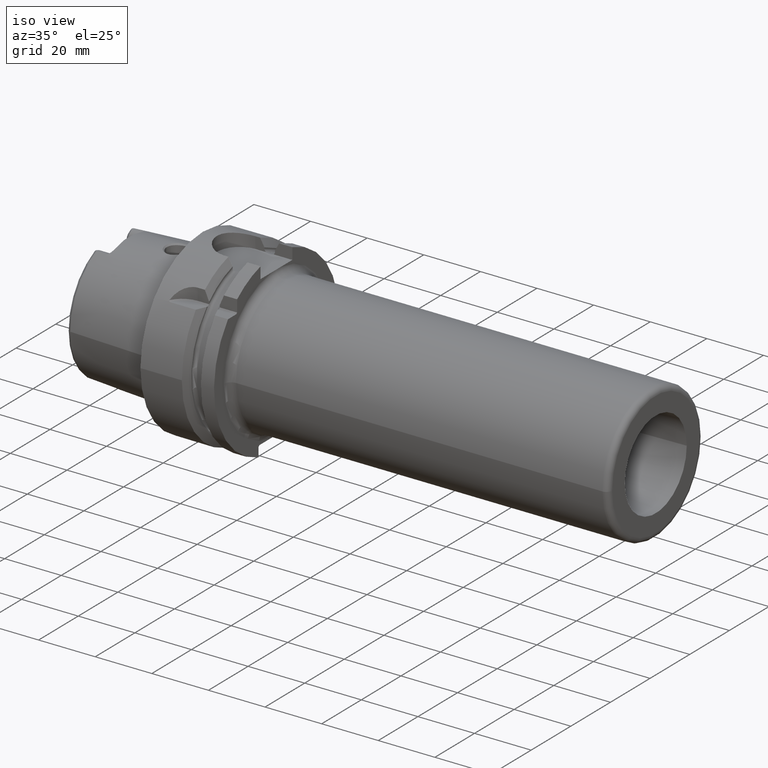
[diagram: clean part render]
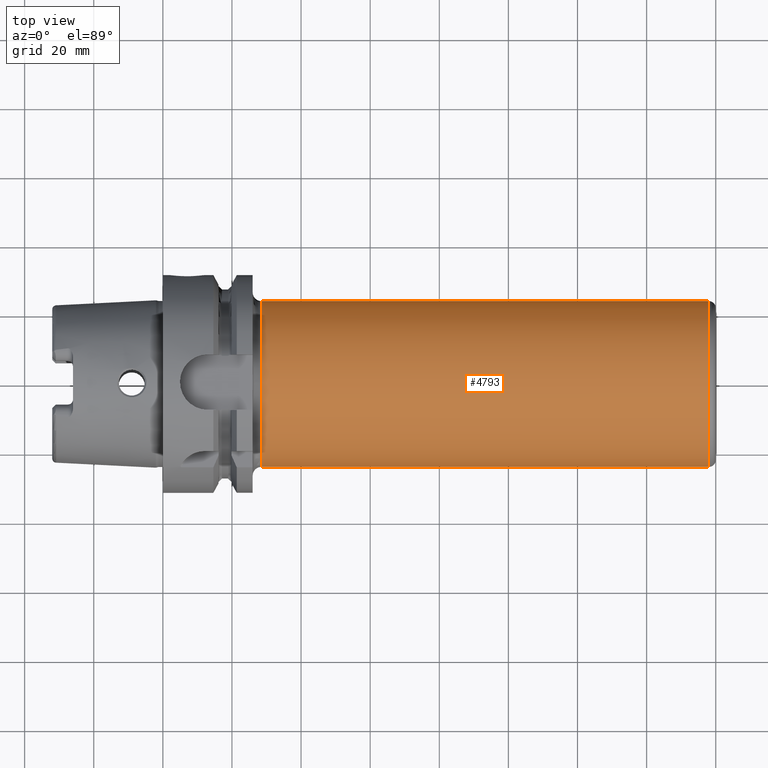
[diagram: tour spotlight — one face highlighted and labeled with its STEP entity id]
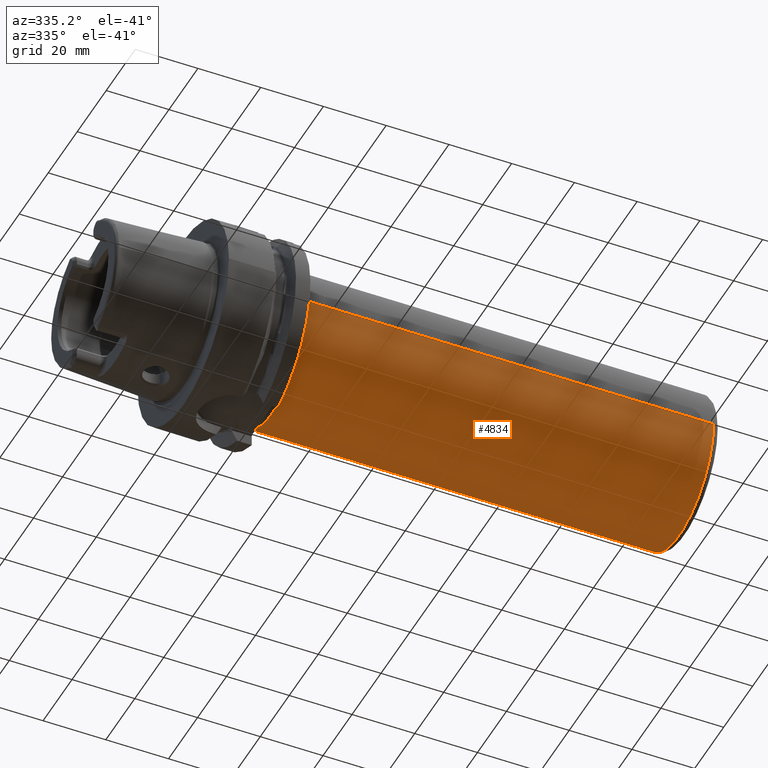
[diagram: tour spotlight — one face highlighted and labeled with its STEP entity id]
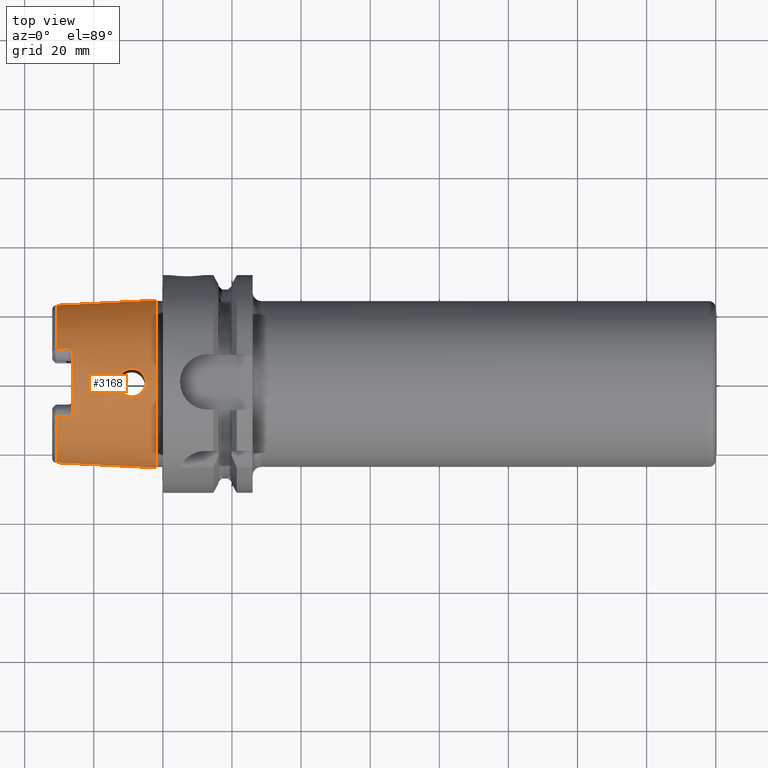
[diagram: tour spotlight — one face highlighted and labeled with its STEP entity id]
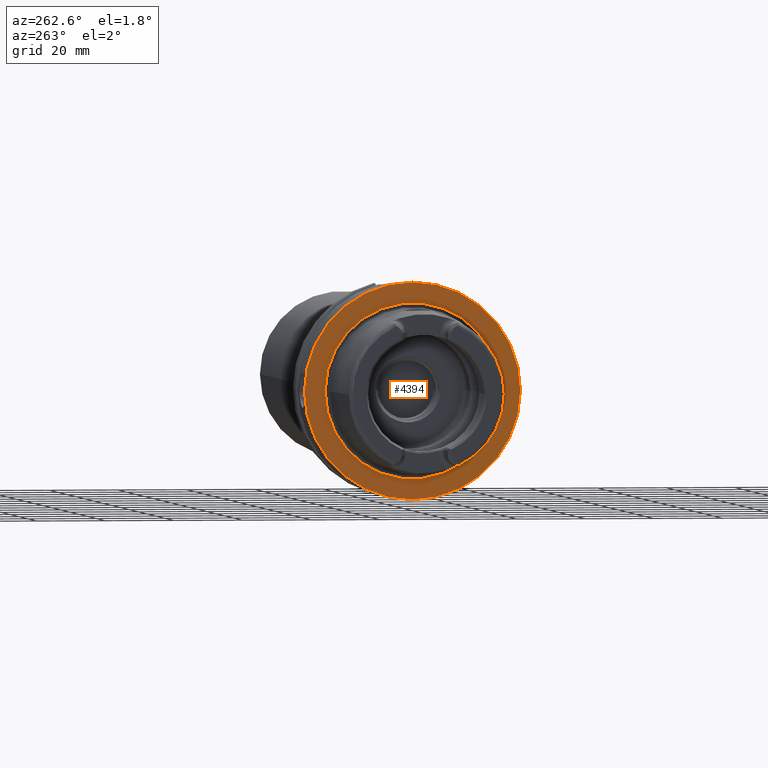
[diagram: tour spotlight — one face highlighted and labeled with its STEP entity id]
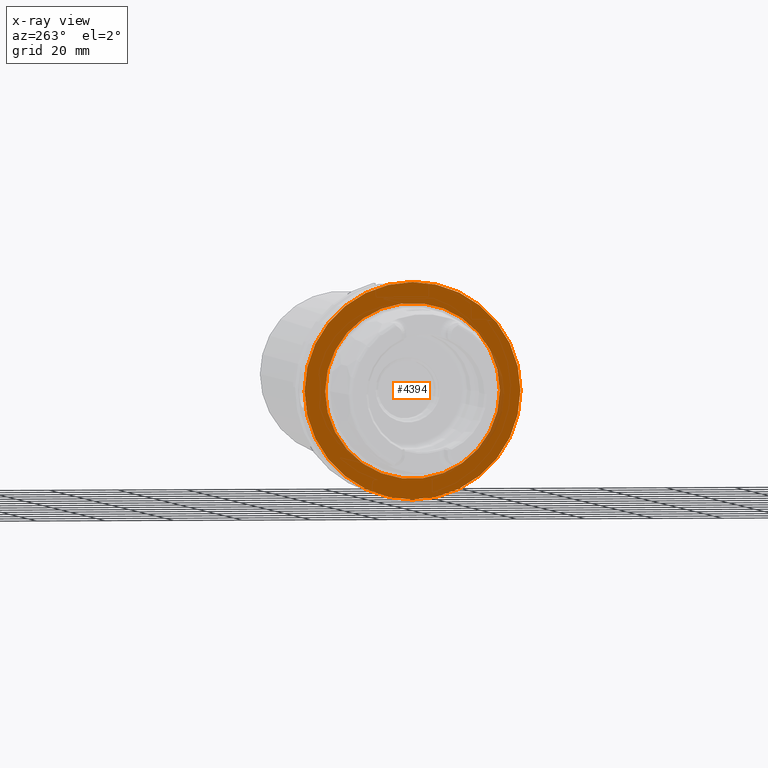
[diagram: x-ray of the same camera — body ghosted, this tour face saturated]
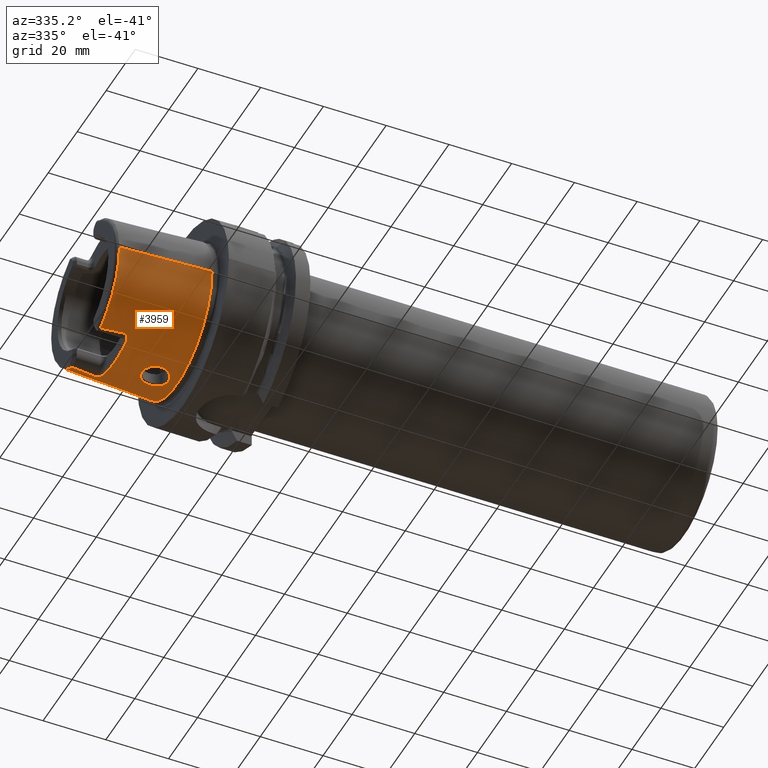
[diagram: tour spotlight — one face highlighted and labeled with its STEP entity id]
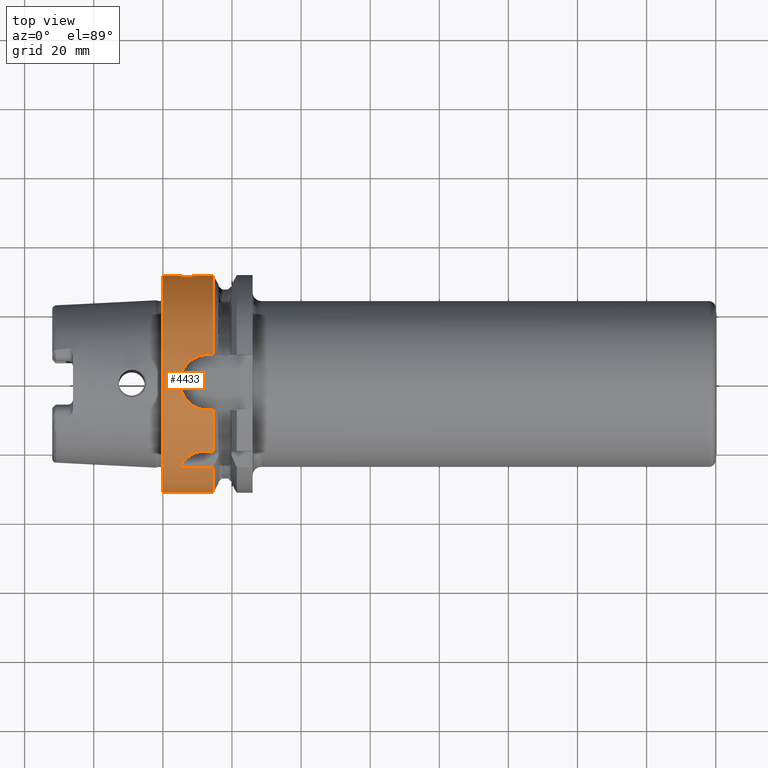
[diagram: tour spotlight — one face highlighted and labeled with its STEP entity id]
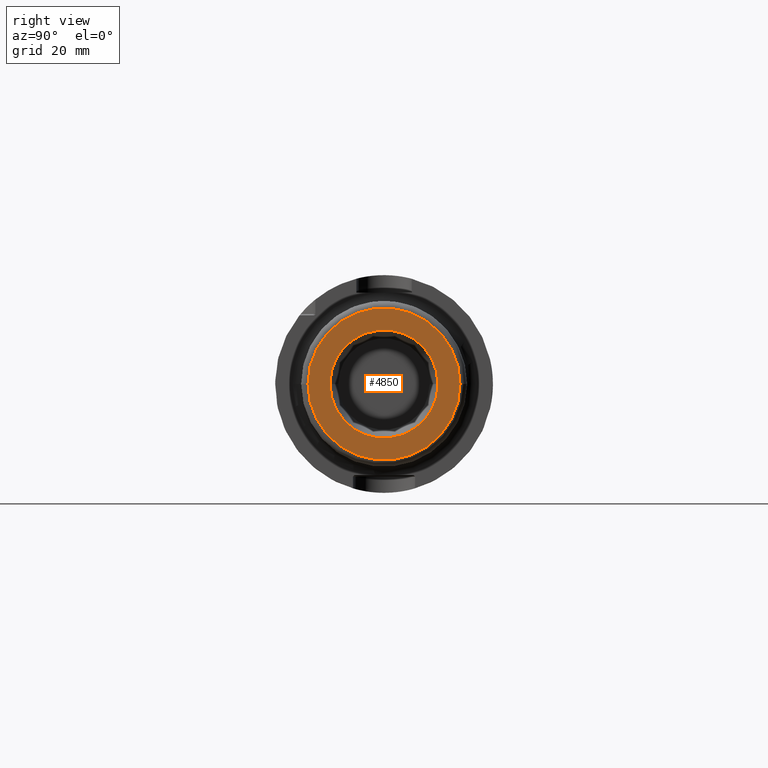
[diagram: tour spotlight — one face highlighted and labeled with its STEP entity id]
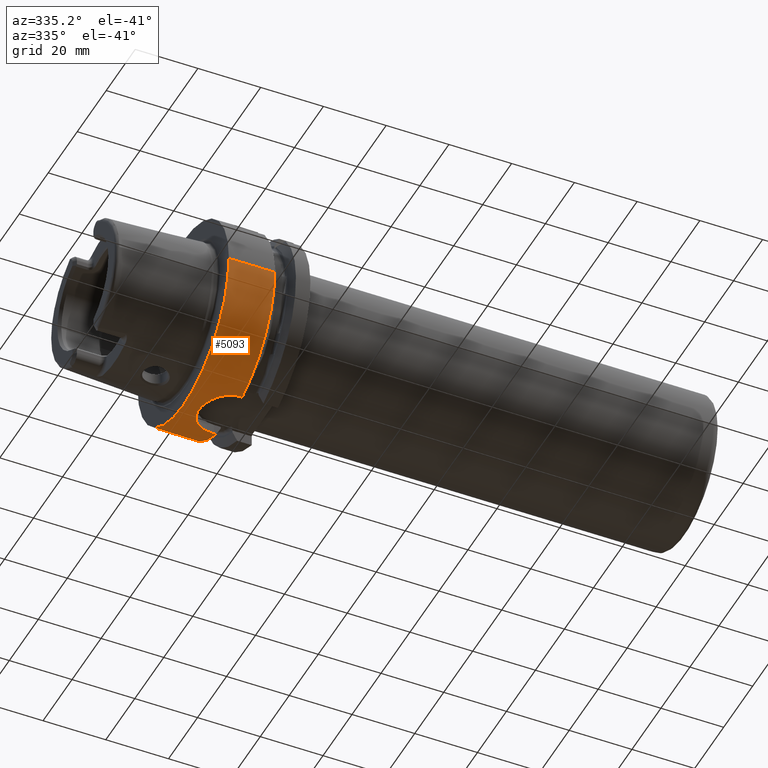
[diagram: tour spotlight — one face highlighted and labeled with its STEP entity id]
A machine part: a face-by-face anatomy tour. The part has 174 B-rep faces; the first image is the clean iso view, then the 8 largest visible faces are spotlighted one at a time (largest first), each with its STEP entity span.

Face 1 — top view, entity #4793. In plain terms, the highlighted cylindrical surface (partial cylindrical patch) has radius 24 mm, axis along (1, 0, 0).
Definition (entity closure, byte-faithful):
#1586=CARTESIAN_POINT('',(1.58E2,0.E0,0.E0));
#1587=DIRECTION('',(-1.E0,0.E0,0.E0));
#1588=DIRECTION('',(0.E0,-1.E0,0.E0));
#1589=AXIS2_PLACEMENT_3D('',#1586,#1587,#1588);
#1591=CARTESIAN_POINT('',(2.85E1,0.E0,0.E0));
#1592=DIRECTION('',(1.E0,0.E0,0.E0));
#1593=DIRECTION('',(0.E0,-1.565407923900E-7,1.E0));
#1594=AXIS2_PLACEMENT_3D('',#1591,#1592,#1593);
#1596=CARTESIAN_POINT('',(2.85E1,0.E0,0.E0));
#1597=DIRECTION('',(1.E0,0.E0,0.E0));
#1598=DIRECTION('',(0.E0,1.E0,0.E0));
#1599=AXIS2_PLACEMENT_3D('',#1596,#1597,#1598);
#1616=DIRECTION('',(-1.E0,0.E0,0.E0));
#1617=VECTOR('',#1616,1.295E2);
#1618=CARTESIAN_POINT('',(1.58E2,2.4E1,-8.236960943498E-14));
#1619=LINE('',#1618,#1617);
#1620=DIRECTION('',(-1.E0,0.E0,-1.251146145468E-14));
#1621=VECTOR('',#1620,1.295E2);
#1622=CARTESIAN_POINT('',(1.58E2,-2.4E1,8.164949623899E-14));
#1623=LINE('',#1622,#1621);
#3095=CARTESIAN_POINT('',(1.58E2,2.4E1,0.E0));
#3096=CARTESIAN_POINT('',(1.58E2,-2.4E1,0.E0));
#3097=VERTEX_POINT('',#3095);
#3098=VERTEX_POINT('',#3096);
#3103=CARTESIAN_POINT('',(2.85E1,2.4E1,0.E0));
#3104=CARTESIAN_POINT('',(2.85E1,-3.756979017359E-6,2.4E1));
#3105=VERTEX_POINT('',#3103);
#3106=VERTEX_POINT('',#3104);
#3107=CARTESIAN_POINT('',(2.85E1,-2.4E1,-1.538584762143E-12));
#3108=VERTEX_POINT('',#3107);
#4778=CARTESIAN_POINT('',(1.93E1,0.E0,0.E0));
#4779=DIRECTION('',(1.E0,0.E0,0.E0));
#4780=DIRECTION('',(0.E0,-1.E0,0.E0));
#4781=AXIS2_PLACEMENT_3D('',#4778,#4779,#4780);
#4782=CYLINDRICAL_SURFACE('',#4781,2.4E1);
#4784=ORIENTED_EDGE('',*,*,#4783,.F.);
#4786=ORIENTED_EDGE('',*,*,#4785,.T.);
#4787=ORIENTED_EDGE('',*,*,#4772,.F.);
#4788=ORIENTED_EDGE('',*,*,#4674,.F.);
#4790=ORIENTED_EDGE('',*,*,#4789,.F.);
#4791=EDGE_LOOP('',(#4784,#4786,#4787,#4788,#4790));
#4792=FACE_OUTER_BOUND('',#4791,.F.);
#4793=ADVANCED_FACE('',(#4792),#4782,.T.);
#1590=CIRCLE('',#1589,2.4E1);
#1595=CIRCLE('',#1594,2.4E1);
#1600=CIRCLE('',#1599,2.4E1);
#4674=EDGE_CURVE('',#3105,#3106,#1600,.T.);
#4772=EDGE_CURVE('',#3106,#3108,#1595,.T.);
#4783=EDGE_CURVE('',#3098,#3097,#1590,.T.);
#4785=EDGE_CURVE('',#3098,#3108,#1623,.T.);
#4789=EDGE_CURVE('',#3097,#3105,#1619,.T.);

Face 2 — auxiliary view, entity #4834. In plain terms, the highlighted cylindrical surface (partial cylindrical patch) has radius 24 mm, axis along (1, 0, 0).
Definition (entity closure, byte-faithful):
#1494=CARTESIAN_POINT('',(2.85E1,0.E0,0.E0));
#1495=DIRECTION('',(1.E0,0.E0,0.E0));
#1496=DIRECTION('',(0.E0,-1.E0,0.E0));
#1497=AXIS2_PLACEMENT_3D('',#1494,#1495,#1496);
#1611=CARTESIAN_POINT('',(1.58E2,0.E0,0.E0));
#1612=DIRECTION('',(-1.E0,0.E0,0.E0));
#1613=DIRECTION('',(0.E0,1.E0,0.E0));
#1614=AXIS2_PLACEMENT_3D('',#1611,#1612,#1613);
#1616=DIRECTION('',(-1.E0,0.E0,0.E0));
#1617=VECTOR('',#1616,1.295E2);
#1618=CARTESIAN_POINT('',(1.58E2,2.4E1,-8.236960943498E-14));
#1619=LINE('',#1618,#1617);
#1620=DIRECTION('',(-1.E0,0.E0,-1.251146145468E-14));
#1621=VECTOR('',#1620,1.295E2);
#1622=CARTESIAN_POINT('',(1.58E2,-2.4E1,8.164949623899E-14));
#1623=LINE('',#1622,#1621);
#3095=CARTESIAN_POINT('',(1.58E2,2.4E1,0.E0));
#3096=CARTESIAN_POINT('',(1.58E2,-2.4E1,0.E0));
#3097=VERTEX_POINT('',#3095);
#3098=VERTEX_POINT('',#3096);
#3103=CARTESIAN_POINT('',(2.85E1,2.4E1,0.E0));
#3105=VERTEX_POINT('',#3103);
#3107=CARTESIAN_POINT('',(2.85E1,-2.4E1,-1.538584762143E-12));
#3108=VERTEX_POINT('',#3107);
#4823=CARTESIAN_POINT('',(1.93E1,0.E0,0.E0));
#4824=DIRECTION('',(1.E0,0.E0,0.E0));
#4825=DIRECTION('',(0.E0,-1.E0,0.E0));
#4826=AXIS2_PLACEMENT_3D('',#4823,#4824,#4825);
#4827=CYLINDRICAL_SURFACE('',#4826,2.4E1);
#4828=ORIENTED_EDGE('',*,*,#4814,.F.);
#4829=ORIENTED_EDGE('',*,*,#4789,.T.);
#4830=ORIENTED_EDGE('',*,*,#4672,.F.);
#4831=ORIENTED_EDGE('',*,*,#4785,.F.);
#4832=EDGE_LOOP('',(#4828,#4829,#4830,#4831));
#4833=FACE_OUTER_BOUND('',#4832,.F.);
#4834=ADVANCED_FACE('',(#4833),#4827,.T.);
#1498=CIRCLE('',#1497,2.4E1);
#1615=CIRCLE('',#1614,2.4E1);
#4672=EDGE_CURVE('',#3108,#3105,#1498,.T.);
#4785=EDGE_CURVE('',#3098,#3108,#1623,.T.);
#4789=EDGE_CURVE('',#3097,#3105,#1619,.T.);
#4814=EDGE_CURVE('',#3097,#3098,#1615,.T.);

Face 3 — top view, entity #3168. In plain terms, the highlighted conical surface has half-angle 2.868 deg.
Definition (entity closure, byte-faithful):
#2=CARTESIAN_POINT('',(-3.086004306431E1,-9.562027931336E0,2.067E1));
#3=CARTESIAN_POINT('',(-3.049253157278E1,-9.605880711653E0,2.067E1));
#4=CARTESIAN_POINT('',(-2.975362396220E1,-9.693552821268E0,2.067E1));
#5=CARTESIAN_POINT('',(-2.863363692789E1,-9.824971306479E0,2.067E1));
#6=CARTESIAN_POINT('',(-2.787917629619E1,-9.912538799101E0,2.067E1));
#7=CARTESIAN_POINT('',(-2.75E1,-9.956312881929E0,2.067E1));
#9=CARTESIAN_POINT('',(-2.6E1,0.E0,0.E0));
#10=DIRECTION('',(1.E0,0.E0,0.E0));
#11=DIRECTION('',(0.E0,3.233021702202E-1,9.462957818415E-1));
#12=AXIS2_PLACEMENT_3D('',#9,#10,#11);
#14=CARTESIAN_POINT('',(-2.75E1,9.956312881929E0,2.067E1));
#15=CARTESIAN_POINT('',(-2.787916500946E1,9.912540102101E0,2.067E1));
#16=CARTESIAN_POINT('',(-2.863361059702E1,9.824974374327E0,2.067E1));
#17=CARTESIAN_POINT('',(-2.975359777716E1,9.693555915617E0,2.067E1));
#18=CARTESIAN_POINT('',(-3.049252035285E1,9.605882050456E0,2.067E1));
#19=CARTESIAN_POINT('',(-3.086004306431E1,9.562027931336E0,2.067E1));
#21=CARTESIAN_POINT('',(-2.E0,0.E0,0.E0));
#22=DIRECTION('',(1.E0,0.E0,0.E0));
#23=DIRECTION('',(0.E0,1.E0,0.E0));
#24=AXIS2_PLACEMENT_3D('',#21,#22,#23);
#26=CARTESIAN_POINT('',(-1.324941786023E1,-7.219004501044E-9,2.365679941218E1));
#27=CARTESIAN_POINT('',(-1.324962652857E1,2.128419836803E-1,2.365678895818E1));
#28=CARTESIAN_POINT('',(-1.321789572653E1,6.392154004916E-1,2.365279437370E1));
#29=CARTESIAN_POINT('',(-1.306583173353E1,1.295455377947E0,2.363353567605E1));
#30=CARTESIAN_POINT('',(-1.280774848226E1,1.924363159712E0,2.360322882883E1));
#31=CARTESIAN_POINT('',(-1.245682539685E1,2.498002640667E0,2.356658532007E1));
#32=CARTESIAN_POINT('',(-1.202590717647E1,3.003748276320E0,2.352875153285E1));
#33=CARTESIAN_POINT('',(-1.151587453193E1,3.440667161266E0,2.349418467003E1));
#34=CARTESIAN_POINT('',(-1.094488701051E1,3.790928519035E0,2.346872738592E1));
#35=CARTESIAN_POINT('',(-1.032606556195E1,4.047968073685E0,2.345686676513E1));
#36=CARTESIAN_POINT('',(-9.674487886290E0,4.205448144478E0,2.346208039452E1));
#37=CARTESIAN_POINT('',(-9.005382482159E0,4.259666064034E0,2.348629251751E1));
#38=CARTESIAN_POINT('',(-8.334406518885E0,4.208654245636E0,2.352972397238E1));
#39=CARTESIAN_POINT('',(-7.678583145358E0,4.052835118832E0,2.359064506703E1));
#40=CARTESIAN_POINT('',(-7.054746219975E0,3.795297178824E0,2.366546684138E1));
#41=CARTESIAN_POINT('',(-6.478384090661E0,3.441929617339E0,2.374909717224E1));
#42=CARTESIAN_POINT('',(-5.963720829785E0,2.998888105398E0,2.383556837714E1));
#43=CARTESIAN_POINT('',(-5.531697254110E0,2.487245477785E0,2.391660020727E1));
#44=CARTESIAN_POINT('',(-5.183622696567E0,1.910877761534E0,2.398748891792E1));
#45=CARTESIAN_POINT('',(-4.930520871648E0,1.285429316774E0,2.404215083473E1));
#46=CARTESIAN_POINT('',(-4.781592632661E0,6.352567731875E-1,2.407559904029E1));
#47=CARTESIAN_POINT('',(-4.750478792548E0,2.114683342023E-1,2.408258846670E1));
#48=CARTESIAN_POINT('',(-4.750585905229E0,7.197553449570E-9,2.408258310050E1));
#50=CARTESIAN_POINT('',(-4.750585905229E0,7.197553449570E-9,2.408258310050E1));
#51=CARTESIAN_POINT('',(-4.750395627959E0,-2.105069288240E-1,2.408259263313E1));
#52=CARTESIAN_POINT('',(-4.781309836194E0,-6.330630552620E-1,2.407566909301E1));
#53=CARTESIAN_POINT('',(-4.930068182376E0,-1.284334675678E0,2.404224817580E1));
#54=CARTESIAN_POINT('',(-5.183732271360E0,-1.911208248299E0,2.398746160179E1));
#55=CARTESIAN_POINT('',(-5.531554832014E0,-2.486758661206E0,2.391664059803E1));
#56=CARTESIAN_POINT('',(-5.960736101322E0,-2.995606004120E0,2.383611484308E1));
#57=CARTESIAN_POINT('',(-6.472413726219E0,-3.437431533938E0,2.375005151539E1));
#58=CARTESIAN_POINT('',(-7.047774921505E0,-3.791791568104E0,2.366638920783E1));
#59=CARTESIAN_POINT('',(-7.671990993959E0,-4.050736119112E0,2.359134441504E1));
#60=CARTESIAN_POINT('',(-8.327799970975E0,-4.207619640495E0,2.353024681340E1));
#61=CARTESIAN_POINT('',(-8.998662135271E0,-4.259680399888E0,2.348663216787E1));
#62=CARTESIAN_POINT('',(-9.668037445633E0,-4.206488328283E0,2.346222081393E1));
#63=CARTESIAN_POINT('',(-1.031990079178E1,-4.049961979503E0,2.345683302195E1));
#64=CARTESIAN_POINT('',(-1.093870323089E1,-3.794046262990E0,2.346853209808E1));
#65=CARTESIAN_POINT('',(-1.151051650685E1,-3.444658410973E0,2.349386945058E1));
#66=CARTESIAN_POINT('',(-1.202283712979E1,-3.007012911900E0,2.352850073603E1));
#67=CARTESIAN_POINT('',(-1.245609200384E1,-2.499248587590E0,2.356650362943E1));
#68=CARTESIAN_POINT('',(-1.280745559330E1,-1.924878595842E0,2.360319856514E1));
#69=CARTESIAN_POINT('',(-1.306526541006E1,-1.297000138509E0,2.363346880977E1));
#70=CARTESIAN_POINT('',(-1.321765204718E1,-6.412116938996E-1,2.365275767433E1));
#71=CARTESIAN_POINT('',(-1.324954460014E1,-2.136894906074E-1,2.365679306269E1));
#72=CARTESIAN_POINT('',(-1.324941786023E1,-7.219004501044E-9,2.365679941218E1));
#82=CARTESIAN_POINT('',(-2.651259296226E1,-9.27E0,2.104082891384E1));
#83=CARTESIAN_POINT('',(-2.655060528934E1,-9.340723960488E0,2.100758892059E1));
#84=CARTESIAN_POINT('',(-2.663038504623E1,-9.471838743333E0,2.094458948833E1));
#85=CARTESIAN_POINT('',(-2.676092291608E1,-9.637362323001E0,2.086163997968E1));
#86=CARTESIAN_POINT('',(-2.690131837165E1,-9.770899105642E0,2.079157611E1));
#87=CARTESIAN_POINT('',(-2.705226454993E1,-9.871852756963E0,2.073538687848E1));
#88=CARTESIAN_POINT('',(-2.720441776005E1,-9.934823835429E0,2.069678496112E1));
#89=CARTESIAN_POINT('',(-2.735189841416E1,-9.963277454574E0,2.067488149845E1));
#90=CARTESIAN_POINT('',(-2.745092740764E1,-9.961978077101E0,2.067E1));
#91=CARTESIAN_POINT('',(-2.75E1,-9.956312881929E0,2.067E1));
#93=CARTESIAN_POINT('',(-2.6E1,-7.441787718571E0,2.178189005860E1));
#94=CARTESIAN_POINT('',(-2.6E1,-7.574673232080E0,2.173648969253E1));
#95=CARTESIAN_POINT('',(-2.601813511197E1,-7.850865569829E0,2.163846841914E1));
#96=CARTESIAN_POINT('',(-2.610760114915E1,-8.297034966034E0,2.146679982993E1));
#97=CARTESIAN_POINT('',(-2.626559360892E1,-8.768529603152E0,2.127027062942E1));
#98=CARTESIAN_POINT('',(-2.642147165719E1,-9.100463955368E0,2.112051021193E1));
#99=CARTESIAN_POINT('',(-2.651259296226E1,-9.27E0,2.104082891384E1));
#185=CARTESIAN_POINT('',(-3.086004306431E1,0.E0,0.E0));
#186=DIRECTION('',(1.E0,0.E0,0.E0));
#187=DIRECTION('',(0.E0,1.E0,0.E0));
#188=AXIS2_PLACEMENT_3D('',#185,#186,#187);
#196=CARTESIAN_POINT('',(-3.086004306431E1,9.562027931336E0,2.067E1));
#261=CARTESIAN_POINT('',(-3.086004306431E1,0.E0,0.E0));
#262=DIRECTION('',(1.E0,0.E0,0.E0));
#263=DIRECTION('',(0.E0,-4.198553792210E-1,9.075910205259E-1));
#264=AXIS2_PLACEMENT_3D('',#261,#262,#263);
#457=CARTESIAN_POINT('',(-2.651259296226E1,9.27E0,2.104082891384E1));
#458=CARTESIAN_POINT('',(-2.642147038701E1,9.100461592138E0,2.112051132264E1));
#459=CARTESIAN_POINT('',(-2.626559126698E1,8.768524006326E0,2.127027307791E1));
#460=CARTESIAN_POINT('',(-2.610760038346E1,8.297031203136E0,2.146680127908E1));
#461=CARTESIAN_POINT('',(-2.601813556642E1,7.850867870131E0,2.163846753656E1));
#462=CARTESIAN_POINT('',(-2.6E1,7.574674433427E0,2.173648928209E1));
#463=CARTESIAN_POINT('',(-2.6E1,7.441787718571E0,2.178189005860E1));
#497=CARTESIAN_POINT('',(-2.75E1,9.956312881929E0,2.067E1));
#498=CARTESIAN_POINT('',(-2.745017853421E1,9.962064530943E0,2.067E1));
#499=CARTESIAN_POINT('',(-2.734992708669E1,9.963297705486E0,2.067498167063E1));
#500=CARTESIAN_POINT('',(-2.719976747307E1,9.933459927686E0,2.069769932459E1));
#501=CARTESIAN_POINT('',(-2.704939607884E1,9.870085988272E0,2.073638612523E1));
#502=CARTESIAN_POINT('',(-2.690048936387E1,9.770127639355E0,2.079198258623E1));
#503=CARTESIAN_POINT('',(-2.676049508867E1,9.636879759274E0,2.086188624037E1));
#504=CARTESIAN_POINT('',(-2.663016689843E1,9.471495400784E0,2.094475592633E1));
#505=CARTESIAN_POINT('',(-2.655053916050E1,9.340600924250E0,2.100764674716E1));
#506=CARTESIAN_POINT('',(-2.651259296226E1,9.27E0,2.104082891384E1));
#763=DIRECTION('',(-9.987474205320E-1,5.003588692862E-2,0.E0));
#764=VECTOR('',#763,2.889623789861E1);
#765=CARTESIAN_POINT('',(-2.E0,-2.422042414966E1,0.E0));
#766=LINE('',#765,#764);
#772=DIRECTION('',(-9.987474205320E-1,-5.003588692862E-2,0.E0));
#773=VECTOR('',#772,2.889623789861E1);
#774=CARTESIAN_POINT('',(-2.E0,2.422042414966E1,0.E0));
#775=LINE('',#774,#773);
#2671=CARTESIAN_POINT('',(-2.E0,2.422042414966E1,0.E0));
#2672=CARTESIAN_POINT('',(-2.E0,-2.422042414966E1,0.E0));
#2673=VERTEX_POINT('',#2671);
#2674=VERTEX_POINT('',#2672);
#2675=CARTESIAN_POINT('',(-3.086004306431E1,2.277457525750E1,0.E0));
#2676=VERTEX_POINT('',#2675);
#2677=CARTESIAN_POINT('',(-3.086004306431E1,-2.277457525750E1,0.E0));
#2678=VERTEX_POINT('',#2677);
#2716=VERTEX_POINT('',#196);
#2717=CARTESIAN_POINT('',(-3.086004306431E1,-9.562027931336E0,2.067E1));
#2718=VERTEX_POINT('',#2717);
#2728=CARTESIAN_POINT('',(-2.6E1,7.441787718571E0,2.178189005860E1));
#2729=VERTEX_POINT('',#2728);
#2732=CARTESIAN_POINT('',(-2.75E1,9.956312881929E0,2.067E1));
#2733=VERTEX_POINT('',#2732);
#2734=CARTESIAN_POINT('',(-2.6E1,-7.441787718571E0,2.178189005860E1));
#2735=VERTEX_POINT('',#2734);
#2738=CARTESIAN_POINT('',(-2.75E1,-9.956312881929E0,2.067E1));
#2739=VERTEX_POINT('',#2738);
#2740=VERTEX_POINT('',#506);
#2741=VERTEX_POINT('',#82);
#2882=VERTEX_POINT('',#26);
#2883=VERTEX_POINT('',#48);
#3131=CARTESIAN_POINT('',(-1.643002153216E1,0.E0,0.E0));
#3132=DIRECTION('',(1.E0,0.E0,0.E0));
#3133=DIRECTION('',(0.E0,-1.E0,0.E0));
#3134=AXIS2_PLACEMENT_3D('',#3131,#3132,#3133);
#3135=CONICAL_SURFACE('',#3134,2.349749970358E1,2.868042729042E0);
#3137=ORIENTED_EDGE('',*,*,#3136,.T.);
#3139=ORIENTED_EDGE('',*,*,#3138,.F.);
#3141=ORIENTED_EDGE('',*,*,#3140,.F.);
#3143=ORIENTED_EDGE('',*,*,#3142,.F.);
#3145=ORIENTED_EDGE('',*,*,#3144,.F.);
#3147=ORIENTED_EDGE('',*,*,#3146,.F.);
#3149=ORIENTED_EDGE('',*,*,#3148,.T.);
#3151=ORIENTED_EDGE('',*,*,#3150,.F.);
#3153=ORIENTED_EDGE('',*,*,#3152,.F.);
#3155=ORIENTED_EDGE('',*,*,#3154,.T.);
#3157=ORIENTED_EDGE('',*,*,#3156,.T.);
#3159=ORIENTED_EDGE('',*,*,#3158,.F.);
#3160=EDGE_LOOP('',(#3137,#3139,#3141,#3143,#3145,#3147,#3149,#3151,#3153,#3155,
#3157,#3159));
#3161=FACE_OUTER_BOUND('',#3160,.F.);
#3163=ORIENTED_EDGE('',*,*,#3162,.F.);
#3165=ORIENTED_EDGE('',*,*,#3164,.F.);
#3166=EDGE_LOOP('',(#3163,#3165));
#3167=FACE_BOUND('',#3166,.F.);
#3168=ADVANCED_FACE('',(#3161,#3167),#3135,.T.);
#8=B_SPLINE_CURVE_WITH_KNOTS('',3,(#2,#3,#4,#5,#6,#7),.UNSPECIFIED.,.F.,.F.,(4,
1,1,4),(0.E0,3.333333333333E-1,6.666666666667E-1,1.E0),.UNSPECIFIED.);
#13=CIRCLE('',#12,2.301805680272E1);
#20=B_SPLINE_CURVE_WITH_KNOTS('',3,(#14,#15,#16,#17,#18,#19),.UNSPECIFIED.,.F.,
.F.,(4,1,1,4),(0.E0,3.333333333333E-1,6.666666666667E-1,1.E0),.UNSPECIFIED.);
#25=CIRCLE('',#24,2.422042414966E1);
#49=B_SPLINE_CURVE_WITH_KNOTS('',3,(#26,#27,#28,#29,#30,#31,#32,#33,#34,#35,#36,
#37,#38,#39,#40,#41,#42,#43,#44,#45,#46,#47,#48),.UNSPECIFIED.,.F.,.F.,(4,1,1,1,
1,1,1,1,1,1,1,1,1,1,1,1,1,1,1,1,4),(0.E0,5.E-2,1.E-1,1.5E-1,2.E-1,2.5E-1,3.E-1,
3.5E-1,4.E-1,4.5E-1,5.E-1,5.5E-1,6.E-1,6.5E-1,7.E-1,7.5E-1,8.E-1,8.5E-1,9.E-1,
9.5E-1,1.E0),.UNSPECIFIED.);
#73=B_SPLINE_CURVE_WITH_KNOTS('',3,(#50,#51,#52,#53,#54,#55,#56,#57,#58,#59,#60,
#61,#62,#63,#64,#65,#66,#67,#68,#69,#70,#71,#72),.UNSPECIFIED.,.F.,.F.,(4,1,1,1,
1,1,1,1,1,1,1,1,1,1,1,1,1,1,1,1,4),(0.E0,5.E-2,1.E-1,1.5E-1,2.E-1,2.5E-1,3.E-1,
3.5E-1,4.E-1,4.5E-1,5.E-1,5.5E-1,6.E-1,6.5E-1,7.E-1,7.5E-1,8.E-1,8.5E-1,9.E-1,
9.5E-1,1.E0),.UNSPECIFIED.);
#92=B_SPLINE_CURVE_WITH_KNOTS('',3,(#82,#83,#84,#85,#86,#87,#88,#89,#90,#91),
.UNSPECIFIED.,.F.,.F.,(4,1,1,1,1,1,1,4),(0.E0,1.428571428571E-1,
2.857142857143E-1,4.285714285714E-1,5.714285714286E-1,7.142857142857E-1,
8.571428571429E-1,1.E0),.UNSPECIFIED.);
#100=B_SPLINE_CURVE_WITH_KNOTS('',3,(#93,#94,#95,#96,#97,#98,#99),.UNSPECIFIED.,
.F.,.F.,(4,1,1,1,4),(0.E0,2.5E-1,5.E-1,7.5E-1,1.E0),.UNSPECIFIED.);
#189=CIRCLE('',#188,2.277457525750E1);
#265=CIRCLE('',#264,2.277457525750E1);
#464=B_SPLINE_CURVE_WITH_KNOTS('',3,(#457,#458,#459,#460,#461,#462,#463),
.UNSPECIFIED.,.F.,.F.,(4,1,1,1,4),(0.E0,2.5E-1,5.E-1,7.5E-1,1.E0),
.UNSPECIFIED.);
#507=B_SPLINE_CURVE_WITH_KNOTS('',3,(#497,#498,#499,#500,#501,#502,#503,#504,
#505,#506),.UNSPECIFIED.,.F.,.F.,(4,1,1,1,1,1,1,4),(0.E0,1.428571428571E-1,
2.857142857143E-1,4.285714285714E-1,5.714285714286E-1,7.142857142857E-1,
8.571428571429E-1,1.E0),.UNSPECIFIED.);
#3136=EDGE_CURVE('',#2718,#2739,#8,.T.);
#3138=EDGE_CURVE('',#2741,#2739,#92,.T.);
#3140=EDGE_CURVE('',#2735,#2741,#100,.T.);
#3142=EDGE_CURVE('',#2729,#2735,#13,.T.);
#3144=EDGE_CURVE('',#2740,#2729,#464,.T.);
#3146=EDGE_CURVE('',#2733,#2740,#507,.T.);
#3148=EDGE_CURVE('',#2733,#2716,#20,.T.);
#3150=EDGE_CURVE('',#2676,#2716,#189,.T.);
#3152=EDGE_CURVE('',#2673,#2676,#775,.T.);
#3154=EDGE_CURVE('',#2673,#2674,#25,.T.);
#3156=EDGE_CURVE('',#2674,#2678,#766,.T.);
#3158=EDGE_CURVE('',#2718,#2678,#265,.T.);
#3162=EDGE_CURVE('',#2882,#2883,#49,.T.);
#3164=EDGE_CURVE('',#2883,#2882,#73,.T.);

Face 4 — auxiliary view, entity #4394. An x-ray twin of the same camera follows (body ghosted, this face saturated) — the face is partly hidden behind the body. In plain terms, the highlighted planar face has unit normal (1, 0, 0).
Definition (entity closure, byte-faithful):
#1068=CARTESIAN_POINT('',(-1.421085471520E-14,0.E0,0.E0));
#1069=DIRECTION('',(1.E0,0.E0,0.E0));
#1070=DIRECTION('',(0.E0,1.E0,0.E0));
#1071=AXIS2_PLACEMENT_3D('',#1068,#1069,#1070);
#1073=CARTESIAN_POINT('',(-1.421085471520E-14,0.E0,0.E0));
#1074=DIRECTION('',(-1.E0,0.E0,0.E0));
#1075=DIRECTION('',(0.E0,1.E0,0.E0));
#1076=AXIS2_PLACEMENT_3D('',#1073,#1074,#1075);
#1078=CARTESIAN_POINT('',(0.E0,0.E0,0.E0));
#1079=DIRECTION('',(-1.E0,0.E0,0.E0));
#1080=DIRECTION('',(0.E0,-1.E0,0.E0));
#1081=AXIS2_PLACEMENT_3D('',#1078,#1079,#1080);
#1083=CARTESIAN_POINT('',(0.E0,0.E0,0.E0));
#1084=DIRECTION('',(-1.E0,0.E0,0.E0));
#1085=DIRECTION('',(0.E0,1.E0,0.E0));
#1086=AXIS2_PLACEMENT_3D('',#1083,#1084,#1085);
#2651=CARTESIAN_POINT('',(-1.421085471520E-14,3.15E1,0.E0));
#2652=CARTESIAN_POINT('',(-1.421085471520E-14,-3.15E1,0.E0));
#2653=VERTEX_POINT('',#2651);
#2654=VERTEX_POINT('',#2652);
#2679=CARTESIAN_POINT('',(0.E0,-2.549042414966E1,0.E0));
#2680=VERTEX_POINT('',#2679);
#2681=CARTESIAN_POINT('',(0.E0,2.549042414966E1,0.E0));
#2682=VERTEX_POINT('',#2681);
#4379=CARTESIAN_POINT('',(0.E0,0.E0,0.E0));
#4380=DIRECTION('',(1.E0,0.E0,0.E0));
#4381=DIRECTION('',(0.E0,-1.E0,0.E0));
#4382=AXIS2_PLACEMENT_3D('',#4379,#4380,#4381);
#4383=PLANE('',#4382);
#4385=ORIENTED_EDGE('',*,*,#4384,.T.);
#4387=ORIENTED_EDGE('',*,*,#4386,.F.);
#4388=EDGE_LOOP('',(#4385,#4387));
#4389=FACE_OUTER_BOUND('',#4388,.F.);
#4390=ORIENTED_EDGE('',*,*,#4374,.T.);
#4391=ORIENTED_EDGE('',*,*,#4358,.T.);
#4392=EDGE_LOOP('',(#4390,#4391));
#4393=FACE_BOUND('',#4392,.F.);
#4394=ADVANCED_FACE('',(#4389,#4393),#4383,.F.);
#1072=CIRCLE('',#1071,3.15E1);
#1077=CIRCLE('',#1076,3.15E1);
#1082=CIRCLE('',#1081,2.549042414966E1);
#1087=CIRCLE('',#1086,2.549042414966E1);
#4358=EDGE_CURVE('',#2682,#2680,#1087,.T.);
#4374=EDGE_CURVE('',#2680,#2682,#1082,.T.);
#4384=EDGE_CURVE('',#2653,#2654,#1072,.T.);
#4386=EDGE_CURVE('',#2653,#2654,#1077,.T.);

Face 5 — auxiliary view, entity #3959. In plain terms, the highlighted conical surface has half-angle 2.868 deg.
Definition (entity closure, byte-faithful):
#172=CARTESIAN_POINT('',(-3.086004306431E1,9.562027931336E0,-2.067E1));
#180=CARTESIAN_POINT('',(-3.086004306431E1,0.E0,0.E0));
#181=DIRECTION('',(-1.E0,0.E0,0.E0));
#182=DIRECTION('',(0.E0,1.E0,0.E0));
#183=AXIS2_PLACEMENT_3D('',#180,#181,#182);
#266=CARTESIAN_POINT('',(-3.086004306431E1,0.E0,0.E0));
#267=DIRECTION('',(-1.E0,0.E0,0.E0));
#268=DIRECTION('',(0.E0,-4.198553792210E-1,-9.075910205259E-1));
#269=AXIS2_PLACEMENT_3D('',#266,#267,#268);
#715=CARTESIAN_POINT('',(-2.35E1,-1.040978349090E1,-2.067E1));
#716=CARTESIAN_POINT('',(-2.344355022851E1,-1.041607090076E1,-2.067E1));
#717=CARTESIAN_POINT('',(-2.332956993861E1,-1.041630964332E1,
-2.067627649687E1));
#718=CARTESIAN_POINT('',(-2.315431779142E1,-1.037517685704E1,
-2.070680447798E1));
#719=CARTESIAN_POINT('',(-2.298610382819E1,-1.029332142770E1,
-2.075709446100E1));
#720=CARTESIAN_POINT('',(-2.282168004898E1,-1.016791062235E1,
-2.082809580409E1));
#721=CARTESIAN_POINT('',(-2.266724538325E1,-9.999284585470E0,
-2.091827708343E1));
#722=CARTESIAN_POINT('',(-2.252949651780E1,-9.795860386621E0,
-2.102205159226E1));
#723=CARTESIAN_POINT('',(-2.240609239614E1,-9.556317791147E0,
-2.113897791639E1));
#724=CARTESIAN_POINT('',(-2.233295118151E1,-9.369771312934E0,
-2.122596447282E1));
#725=CARTESIAN_POINT('',(-2.229902715702E1,-9.27E0,-2.127129858661E1));
#732=CARTESIAN_POINT('',(-2.229902715702E1,-9.27E0,-2.127129858661E1));
#733=CARTESIAN_POINT('',(-2.223399395074E1,-9.078735889296E0,
-2.135820522042E1));
#734=CARTESIAN_POINT('',(-2.212138063131E1,-8.709703982970E0,
-2.151897497246E1));
#735=CARTESIAN_POINT('',(-2.202143095510E1,-8.195867731278E0,
-2.172483116732E1));
#736=CARTESIAN_POINT('',(-2.2E1,-7.876905772307E0,-2.184209600703E1));
#737=CARTESIAN_POINT('',(-2.2E1,-7.723914364163E0,-2.189606426911E1));
#744=CARTESIAN_POINT('',(-3.086004306431E1,9.562027931336E0,-2.067E1));
#745=CARTESIAN_POINT('',(-3.006933576531E1,9.656377942908E0,-2.067E1));
#746=CARTESIAN_POINT('',(-2.846987211493E1,9.844931102331E0,-2.067E1));
#747=CARTESIAN_POINT('',(-2.601704943476E1,1.012739619931E1,-2.067E1));
#748=CARTESIAN_POINT('',(-2.434508424921E1,1.031565749353E1,-2.067E1));
#749=CARTESIAN_POINT('',(-2.35E1,1.040978349090E1,-2.067E1));
#751=CARTESIAN_POINT('',(-2.2E1,0.E0,0.E0));
#752=DIRECTION('',(1.E0,0.E0,0.E0));
#753=DIRECTION('',(0.E0,-3.326627708379E-1,-9.430458530201E-1));
#754=AXIS2_PLACEMENT_3D('',#751,#752,#753);
#756=CARTESIAN_POINT('',(-2.35E1,-1.040978349090E1,-2.067E1));
#757=CARTESIAN_POINT('',(-2.434499363207E1,-1.031566758652E1,-2.067E1));
#758=CARTESIAN_POINT('',(-2.601683809497E1,-1.012742018211E1,-2.067E1));
#759=CARTESIAN_POINT('',(-2.846966522954E1,-9.844955281726E0,-2.067E1));
#760=CARTESIAN_POINT('',(-3.006924714753E1,-9.656388517097E0,-2.067E1));
#761=CARTESIAN_POINT('',(-3.086004306431E1,-9.562027931336E0,-2.067E1));
#763=DIRECTION('',(-9.987474205320E-1,5.003588692862E-2,0.E0));
#764=VECTOR('',#763,2.889623789861E1);
#765=CARTESIAN_POINT('',(-2.E0,-2.422042414966E1,0.E0));
#766=LINE('',#765,#764);
#767=CARTESIAN_POINT('',(-2.E0,0.E0,0.E0));
#768=DIRECTION('',(1.E0,0.E0,0.E0));
#769=DIRECTION('',(0.E0,-1.E0,0.E0));
#770=AXIS2_PLACEMENT_3D('',#767,#768,#769);
#772=DIRECTION('',(-9.987474205320E-1,-5.003588692862E-2,0.E0));
#773=VECTOR('',#772,2.889623789861E1);
#774=CARTESIAN_POINT('',(-2.E0,2.422042414966E1,0.E0));
#775=LINE('',#774,#773);
#776=CARTESIAN_POINT('',(-4.750586214018E0,5.673461659763E-9,
-2.408258339423E1));
#777=CARTESIAN_POINT('',(-4.750477437961E0,2.111411076152E-1,
-2.408258884376E1));
#778=CARTESIAN_POINT('',(-4.781495656806E0,6.343409338442E-1,
-2.407562144168E1));
#779=CARTESIAN_POINT('',(-4.930078657106E0,1.283914855647E0,-2.404224907910E1));
#780=CARTESIAN_POINT('',(-5.182634392381E0,1.908800454949E0,-2.398769888200E1));
#781=CARTESIAN_POINT('',(-5.529831450162E0,2.484539069761E0,-2.391697022480E1));
#782=CARTESIAN_POINT('',(-5.960551469368E0,2.995586150016E0,-2.383614077825E1));
#783=CARTESIAN_POINT('',(-6.473793439058E0,3.438507792172E0,-2.374982588457E1));
#784=CARTESIAN_POINT('',(-7.048787066123E0,3.792204015972E0,-2.366626747645E1));
#785=CARTESIAN_POINT('',(-7.671452269175E0,4.050490920343E0,-2.359141310307E1));
#786=CARTESIAN_POINT('',(-8.326498075054E0,4.207389863949E0,-2.353035449331E1));
#787=CARTESIAN_POINT('',(-8.996688113385E0,4.259622037115E0,-2.348674331493E1));
#788=CARTESIAN_POINT('',(-9.664449704733E0,4.206963769363E0,-2.346231724919E1));
#789=CARTESIAN_POINT('',(-1.031524077611E1,4.051442761029E0,-2.345681057565E1));
#790=CARTESIAN_POINT('',(-1.093485325951E1,3.796098039719E0,-2.346839797168E1));
#791=CARTESIAN_POINT('',(-1.150677686976E1,3.447081430360E0,-2.349368587605E1));
#792=CARTESIAN_POINT('',(-1.201610511114E1,3.013688514077E0,-2.352797212386E1));
#793=CARTESIAN_POINT('',(-1.245275273991E1,2.504280742997E0,-2.356616658718E1));
#794=CARTESIAN_POINT('',(-1.280634613041E1,1.927107192660E0,-2.360307496745E1));
#795=CARTESIAN_POINT('',(-1.306351718265E1,1.301776136825E0,-2.363325793045E1));
#796=CARTESIAN_POINT('',(-1.321667495617E1,6.483699009348E-1,
-2.365261938940E1));
#797=CARTESIAN_POINT('',(-1.324953338827E1,2.167159282651E-1,
-2.365680321669E1));
#798=CARTESIAN_POINT('',(-1.324940828071E1,6.149879737228E-9,
-2.365680948441E1));
#800=CARTESIAN_POINT('',(-1.324940828071E1,6.149879737228E-9,
-2.365680948441E1));
#801=CARTESIAN_POINT('',(-1.324953102801E1,-2.137481481882E-1,
-2.365680333493E1));
#802=CARTESIAN_POINT('',(-1.321763433537E1,-6.412975014817E-1,
-2.365274945467E1));
#803=CARTESIAN_POINT('',(-1.306535183772E1,-1.296633810944E0,
-2.363348136753E1));
#804=CARTESIAN_POINT('',(-1.280777805154E1,-1.924231879999E0,
-2.360323471178E1));
#805=CARTESIAN_POINT('',(-1.245640925213E1,-2.498853587660E0,
-2.356653312143E1));
#806=CARTESIAN_POINT('',(-1.202279775894E1,-3.007095564138E0,
-2.352849478770E1));
#807=CARTESIAN_POINT('',(-1.151012912941E1,-3.444950000041E0,
-2.349384632376E1));
#808=CARTESIAN_POINT('',(-1.093833543731E1,-3.794219313343E0,
-2.346852201482E1));
#809=CARTESIAN_POINT('',(-1.031975853695E1,-4.049996047184E0,
-2.345683414568E1));
#810=CARTESIAN_POINT('',(-9.668027880621E0,-4.206485188960E0,
-2.346222186835E1));
#811=CARTESIAN_POINT('',(-8.998732245580E0,-4.259676561364E0,
-2.348662929012E1));
#812=CARTESIAN_POINT('',(-8.327946517995E0,-4.207637743620E0,
-2.353023608986E1));
#813=CARTESIAN_POINT('',(-7.672280726344E0,-4.050816496641E0,
-2.359131552533E1));
#814=CARTESIAN_POINT('',(-7.048298445734E0,-3.792045808672E0,
-2.366632099982E1));
#815=CARTESIAN_POINT('',(-6.472887987830E0,-3.437795786313E0,
-2.374997505426E1));
#816=CARTESIAN_POINT('',(-5.960766318899E0,-2.995689730409E0,
-2.383610614678E1));
#817=CARTESIAN_POINT('',(-5.531187494687E0,-2.486290041474E0,
-2.391671147691E1));
#818=CARTESIAN_POINT('',(-5.183401261358E0,-1.910526594455E0,
-2.398753185570E1));
#819=CARTESIAN_POINT('',(-4.929997199649E0,-1.284003067748E0,
-2.404226458263E1));
#820=CARTESIAN_POINT('',(-4.781340780308E0,-6.332209723674E-1,
-2.407566103624E1));
#821=CARTESIAN_POINT('',(-4.750402434471E0,-2.105981632370E-1,
-2.408259260134E1));
#822=CARTESIAN_POINT('',(-4.750586214018E0,5.673461659763E-9,
-2.408258339423E1));
#832=CARTESIAN_POINT('',(-2.229902715702E1,9.27E0,-2.127129858661E1));
#833=CARTESIAN_POINT('',(-2.233311157770E1,9.370243041714E0,-2.122575012858E1));
#834=CARTESIAN_POINT('',(-2.240658425841E1,9.557497215840E0,-2.113842140416E1));
#835=CARTESIAN_POINT('',(-2.253041527230E1,9.797438074146E0,-2.102126542838E1));
#836=CARTESIAN_POINT('',(-2.266830373788E1,1.000064778809E1,-2.091756656395E1));
#837=CARTESIAN_POINT('',(-2.282373330426E1,1.017005110462E1,-2.082694270310E1));
#838=CARTESIAN_POINT('',(-2.299261366970E1,1.029790438197E1,-2.075446014923E1));
#839=CARTESIAN_POINT('',(-2.316533457542E1,1.037882348161E1,-2.070435505978E1));
#840=CARTESIAN_POINT('',(-2.333269177476E1,1.041609135758E1,-2.067621009348E1));
#841=CARTESIAN_POINT('',(-2.344467268621E1,1.041594588074E1,-2.067E1));
#842=CARTESIAN_POINT('',(-2.35E1,1.040978349090E1,-2.067E1));
#844=CARTESIAN_POINT('',(-2.2E1,7.723914364163E0,-2.189606426911E1));
#845=CARTESIAN_POINT('',(-2.2E1,7.876901135824E0,-2.184209764257E1));
#846=CARTESIAN_POINT('',(-2.202143124879E1,8.195856320393E0,-2.172483505793E1));
#847=CARTESIAN_POINT('',(-2.212136508173E1,8.709641843939E0,-2.151900085185E1));
#848=CARTESIAN_POINT('',(-2.223398514363E1,9.078709987396E0,-2.135821698973E1));
#849=CARTESIAN_POINT('',(-2.229902715702E1,9.27E0,-2.127129858661E1));
#2671=CARTESIAN_POINT('',(-2.E0,2.422042414966E1,0.E0));
#2672=CARTESIAN_POINT('',(-2.E0,-2.422042414966E1,0.E0));
#2673=VERTEX_POINT('',#2671);
#2674=VERTEX_POINT('',#2672);
#2675=CARTESIAN_POINT('',(-3.086004306431E1,2.277457525750E1,0.E0));
#2676=VERTEX_POINT('',#2675);
#2677=CARTESIAN_POINT('',(-3.086004306431E1,-2.277457525750E1,0.E0));
#2678=VERTEX_POINT('',#2677);
#2796=VERTEX_POINT('',#172);
#2798=CARTESIAN_POINT('',(-3.086004306431E1,-9.562027931336E0,-2.067E1));
#2799=VERTEX_POINT('',#2798);
#2802=CARTESIAN_POINT('',(-2.229902715702E1,-9.27E0,-2.127129858661E1));
#2804=VERTEX_POINT('',#2802);
#2805=VERTEX_POINT('',#737);
#2806=VERTEX_POINT('',#844);
#2807=VERTEX_POINT('',#849);
#2818=CARTESIAN_POINT('',(-2.35E1,-1.040978349090E1,-2.067E1));
#2819=VERTEX_POINT('',#2818);
#2820=CARTESIAN_POINT('',(-2.35E1,1.040978349090E1,-2.067E1));
#2821=VERTEX_POINT('',#2820);
#2886=VERTEX_POINT('',#776);
#2887=VERTEX_POINT('',#798);
#3929=CARTESIAN_POINT('',(-1.643002153216E1,0.E0,0.E0));
#3930=DIRECTION('',(1.E0,0.E0,0.E0));
#3931=DIRECTION('',(0.E0,-1.E0,0.E0));
#3932=AXIS2_PLACEMENT_3D('',#3929,#3930,#3931);
#3933=CONICAL_SURFACE('',#3932,2.349749970358E1,2.868042729042E0);
#3935=ORIENTED_EDGE('',*,*,#3934,.T.);
#3937=ORIENTED_EDGE('',*,*,#3936,.F.);
#3939=ORIENTED_EDGE('',*,*,#3938,.F.);
#3941=ORIENTED_EDGE('',*,*,#3940,.F.);
#3942=ORIENTED_EDGE('',*,*,#3919,.F.);
#3943=ORIENTED_EDGE('',*,*,#3908,.F.);
#3944=ORIENTED_EDGE('',*,*,#3895,.T.);
#3945=ORIENTED_EDGE('',*,*,#3298,.T.);
#3946=ORIENTED_EDGE('',*,*,#3156,.F.);
#3948=ORIENTED_EDGE('',*,*,#3947,.T.);
#3949=ORIENTED_EDGE('',*,*,#3152,.T.);
#3950=ORIENTED_EDGE('',*,*,#3270,.T.);
#3951=EDGE_LOOP('',(#3935,#3937,#3939,#3941,#3942,#3943,#3944,#3945,#3946,#3948,
#3949,#3950));
#3952=FACE_OUTER_BOUND('',#3951,.F.);
#3954=ORIENTED_EDGE('',*,*,#3953,.F.);
#3956=ORIENTED_EDGE('',*,*,#3955,.F.);
#3957=EDGE_LOOP('',(#3954,#3956));
#3958=FACE_BOUND('',#3957,.F.);
#3959=ADVANCED_FACE('',(#3952,#3958),#3933,.T.);
#184=CIRCLE('',#183,2.277457525750E1);
#270=CIRCLE('',#269,2.277457525750E1);
#726=B_SPLINE_CURVE_WITH_KNOTS('',3,(#715,#716,#717,#718,#719,#720,#721,#722,
#723,#724,#725),.UNSPECIFIED.,.F.,.F.,(4,1,1,1,1,1,1,1,4),(0.E0,1.25E-1,2.5E-1,
3.75E-1,5.E-1,6.25E-1,7.5E-1,8.75E-1,1.E0),.UNSPECIFIED.);
#738=B_SPLINE_CURVE_WITH_KNOTS('',3,(#732,#733,#734,#735,#736,#737),
.UNSPECIFIED.,.F.,.F.,(4,1,1,4),(0.E0,3.333333333333E-1,6.666666666667E-1,1.E0),
.UNSPECIFIED.);
#750=B_SPLINE_CURVE_WITH_KNOTS('',3,(#744,#745,#746,#747,#748,#749),
.UNSPECIFIED.,.F.,.F.,(4,1,1,4),(0.E0,3.333333333333E-1,6.666666666667E-1,1.E0),
.UNSPECIFIED.);
#755=CIRCLE('',#754,2.321845136054E1);
#762=B_SPLINE_CURVE_WITH_KNOTS('',3,(#756,#757,#758,#759,#760,#761),
.UNSPECIFIED.,.F.,.F.,(4,1,1,4),(0.E0,3.333333333333E-1,6.666666666667E-1,1.E0),
.UNSPECIFIED.);
#771=CIRCLE('',#770,2.422042414966E1);
#799=B_SPLINE_CURVE_WITH_KNOTS('',3,(#776,#777,#778,#779,#780,#781,#782,#783,
#784,#785,#786,#787,#788,#789,#790,#791,#792,#793,#794,#795,#796,#797,#798),
.UNSPECIFIED.,.F.,.F.,(4,1,1,1,1,1,1,1,1,1,1,1,1,1,1,1,1,1,1,1,4),(0.E0,5.E-2,
1.E-1,1.5E-1,2.E-1,2.5E-1,3.E-1,3.5E-1,4.E-1,4.5E-1,5.E-1,5.5E-1,6.E-1,6.5E-1,
7.E-1,7.5E-1,8.E-1,8.5E-1,9.E-1,9.5E-1,1.E0),.UNSPECIFIED.);
#823=B_SPLINE_CURVE_WITH_KNOTS('',3,(#800,#801,#802,#803,#804,#805,#806,#807,
#808,#809,#810,#811,#812,#813,#814,#815,#816,#817,#818,#819,#820,#821,#822),
.UNSPECIFIED.,.F.,.F.,(4,1,1,1,1,1,1,1,1,1,1,1,1,1,1,1,1,1,1,1,4),(0.E0,5.E-2,
1.E-1,1.5E-1,2.E-1,2.5E-1,3.E-1,3.5E-1,4.E-1,4.5E-1,5.E-1,5.5E-1,6.E-1,6.5E-1,
7.E-1,7.5E-1,8.E-1,8.5E-1,9.E-1,9.5E-1,1.E0),.UNSPECIFIED.);
#843=B_SPLINE_CURVE_WITH_KNOTS('',3,(#832,#833,#834,#835,#836,#837,#838,#839,
#840,#841,#842),.UNSPECIFIED.,.F.,.F.,(4,1,1,1,1,1,1,1,4),(0.E0,1.25E-1,2.5E-1,
3.75E-1,5.E-1,6.25E-1,7.5E-1,8.75E-1,1.E0),.UNSPECIFIED.);
#850=B_SPLINE_CURVE_WITH_KNOTS('',3,(#844,#845,#846,#847,#848,#849),
.UNSPECIFIED.,.F.,.F.,(4,1,1,4),(0.E0,3.333333333333E-1,6.666666666667E-1,1.E0),
.UNSPECIFIED.);
#3152=EDGE_CURVE('',#2673,#2676,#775,.T.);
#3156=EDGE_CURVE('',#2674,#2678,#766,.T.);
#3270=EDGE_CURVE('',#2676,#2796,#184,.T.);
#3298=EDGE_CURVE('',#2799,#2678,#270,.T.);
#3895=EDGE_CURVE('',#2819,#2799,#762,.T.);
#3908=EDGE_CURVE('',#2819,#2804,#726,.T.);
#3919=EDGE_CURVE('',#2804,#2805,#738,.T.);
#3934=EDGE_CURVE('',#2796,#2821,#750,.T.);
#3936=EDGE_CURVE('',#2807,#2821,#843,.T.);
#3938=EDGE_CURVE('',#2806,#2807,#850,.T.);
#3940=EDGE_CURVE('',#2805,#2806,#755,.T.);
#3947=EDGE_CURVE('',#2674,#2673,#771,.T.);
#3953=EDGE_CURVE('',#2886,#2887,#799,.T.);
#3955=EDGE_CURVE('',#2887,#2886,#823,.T.);

Face 6 — top view, entity #4433. In plain terms, the highlighted cylindrical surface (partial cylindrical patch) has radius 31.5 mm, axis along (1, 0, 0).
Definition (entity closure, byte-faithful):
#1068=CARTESIAN_POINT('',(-1.421085471520E-14,0.E0,0.E0));
#1069=DIRECTION('',(1.E0,0.E0,0.E0));
#1070=DIRECTION('',(0.E0,1.E0,0.E0));
#1071=AXIS2_PLACEMENT_3D('',#1068,#1069,#1070);
#1088=CARTESIAN_POINT('',(5.055280953939E0,-2.412856222307E1,2.025000071719E1));
#1089=CARTESIAN_POINT('',(5.203922975858E0,-2.384570309261E1,2.058703695930E1));
#1090=CARTESIAN_POINT('',(5.532173076798E0,-2.330389811185E1,2.120403265678E1));
#1091=CARTESIAN_POINT('',(6.096196943704E0,-2.257931058132E1,2.197133577912E1));
#1092=CARTESIAN_POINT('',(6.720663761460E0,-2.194020929485E1,2.260770262576E1));
#1093=CARTESIAN_POINT('',(7.403538650806E0,-2.138093627305E1,2.313587798030E1));
#1094=CARTESIAN_POINT('',(8.127595486115E0,-2.090969369163E1,2.356146143823E1));
#1095=CARTESIAN_POINT('',(8.885468985840E0,-2.052416799416E1,2.389720051652E1));
#1096=CARTESIAN_POINT('',(9.676498842341E0,-2.022243837463E1,2.415242961118E1));
#1097=CARTESIAN_POINT('',(1.047995851280E1,-2.000874678948E1,2.432931831120E1));
#1098=CARTESIAN_POINT('',(1.130639266309E1,-1.987868667877E1,2.443545312812E1));
#1099=CARTESIAN_POINT('',(1.185909309251E1,-1.985E1,2.445868966237E1));
#1100=CARTESIAN_POINT('',(1.213701040303E1,-1.985E1,2.445868966237E1));
#1102=DIRECTION('',(1.E0,2.905293196731E-8,-6.510821817001E-8));
#1103=VECTOR('',#1102,9.286887939886E0);
#1104=CARTESIAN_POINT('',(5.335612985355E0,-2.445868993218E1,1.985000060465E1));
#1105=LINE('',#1104,#1103);
#1106=CARTESIAN_POINT('',(1.462250092524E1,0.E0,0.E0));
#1107=DIRECTION('',(1.E0,0.E0,0.E0));
#1108=DIRECTION('',(0.E0,-7.764663384879E-1,6.301587301587E-1));
#1109=AXIS2_PLACEMENT_3D('',#1106,#1107,#1108);
#1111=CARTESIAN_POINT('',(7.E0,3.110064308017E1,5.E0));
#1112=CARTESIAN_POINT('',(6.762289362530E0,3.110064308017E1,5.E0));
#1113=CARTESIAN_POINT('',(6.291638752551E0,3.110604175503E1,4.966603315548E0));
#1114=CARTESIAN_POINT('',(5.590941042085E0,3.113002312530E1,4.815051890973E0));
#1115=CARTESIAN_POINT('',(4.922622791572E0,3.116768162346E1,4.566770855038E0));
#1116=CARTESIAN_POINT('',(4.290278046526E0,3.121652868953E1,4.222399367418E0));
#1117=CARTESIAN_POINT('',(3.717410291985E0,3.127184393545E1,3.794316921940E0));
#1118=CARTESIAN_POINT('',(3.206193230594E0,3.133001984817E1,3.283155949907E0));
#1119=CARTESIAN_POINT('',(2.778140338616E0,3.138511708835E1,2.710581430129E0));
#1120=CARTESIAN_POINT('',(2.433504878656E0,3.143364983629E1,2.077962340417E0));
#1121=CARTESIAN_POINT('',(2.185264531596E0,3.147092658786E1,1.410162050339E0));
#1122=CARTESIAN_POINT('',(2.033388478478E0,3.149467218381E1,7.086038393014E-1));
#1123=CARTESIAN_POINT('',(2.E0,3.15E1,2.377507523918E-1));
#1124=CARTESIAN_POINT('',(2.E0,3.15E1,-1.916034746595E-14));
#1126=CARTESIAN_POINT('',(1.2E1,3.15E1,0.E0));
#1127=CARTESIAN_POINT('',(1.2E1,3.15E1,2.377495474180E-1));
#1128=CARTESIAN_POINT('',(1.196662761645E1,3.149467458654E1,7.086186534272E-1));
#1129=CARTESIAN_POINT('',(1.181460579439E1,3.147090665108E1,1.410624843432E0));
#1130=CARTESIAN_POINT('',(1.156638499402E1,3.143363374637E1,2.078189492676E0));
#1131=CARTESIAN_POINT('',(1.122165706390E1,3.138508950965E1,2.710906952246E0));
#1132=CARTESIAN_POINT('',(1.079359615750E1,3.132999459490E1,3.283389066833E0));
#1133=CARTESIAN_POINT('',(1.028239612207E1,3.127182308878E1,3.794489355038E0));
#1134=CARTESIAN_POINT('',(9.709426385252E0,3.121650334061E1,4.222584855819E0));
#1135=CARTESIAN_POINT('',(9.077222790639E0,3.116767152827E1,4.566838108074E0));
#1136=CARTESIAN_POINT('',(8.408812552891E0,3.113001179404E1,4.815125199641E0));
#1137=CARTESIAN_POINT('',(7.708232303628E0,3.110603996499E1,4.966613968094E0));
#1138=CARTESIAN_POINT('',(7.237659908688E0,3.110064308017E1,5.E0));
#1139=CARTESIAN_POINT('',(7.E0,3.110064308017E1,5.E0));
#1141=CARTESIAN_POINT('',(1.462250092524E1,0.E0,0.E0));
#1142=DIRECTION('',(1.E0,0.E0,0.E0));
#1143=DIRECTION('',(0.E0,1.E0,0.E0));
#1144=AXIS2_PLACEMENT_3D('',#1141,#1142,#1143);
#1146=DIRECTION('',(1.E0,0.E0,0.E0));
#1147=VECTOR('',#1146,1.655000925241E0);
#1148=CARTESIAN_POINT('',(1.29675E1,8.0175E0,3.046259499370E1));
#1149=LINE('',#1148,#1147);
#1150=CARTESIAN_POINT('',(1.29675E1,-8.0175E0,3.046259499370E1));
#1151=CARTESIAN_POINT('',(1.262029466193E1,-8.0175E0,3.046259499370E1));
#1152=CARTESIAN_POINT('',(1.193292082029E1,-7.972856309682E0,3.047439785027E1));
#1153=CARTESIAN_POINT('',(1.091425902188E1,-7.773176787902E0,3.052624418591E1));
#1154=CARTESIAN_POINT('',(9.934126849983E0,-7.445404290975E0,3.060831570964E1));
#1155=CARTESIAN_POINT('',(9.004286205686E0,-6.994846174415E0,3.071501370342E1));
#1156=CARTESIAN_POINT('',(8.138619971222E0,-6.428343040649E0,3.083929437245E1));
#1157=CARTESIAN_POINT('',(7.341033244269E0,-5.744094981007E0,3.097488281900E1));
#1158=CARTESIAN_POINT('',(6.636610015904E0,-4.956823973346E0,3.111134005505E1));
#1159=CARTESIAN_POINT('',(6.043298615168E0,-4.087231355503E0,3.123817795333E1));
#1160=CARTESIAN_POINT('',(5.564354260648E0,-3.139626798488E0,3.134839057540E1));
#1161=CARTESIAN_POINT('',(5.208675508384E0,-2.115659667041E0,3.143476377212E1));
#1162=CARTESIAN_POINT('',(4.995564432998E0,-1.053473182399E0,3.148835416009E1));
#1163=CARTESIAN_POINT('',(4.927168873806E0,9.826508337445E-4,3.150583538732E1));
#1164=CARTESIAN_POINT('',(4.995760366771E0,1.054869977933E0,3.148830421554E1));
#1165=CARTESIAN_POINT('',(5.209100296272E0,2.117206961075E0,3.143465845843E1));
#1166=CARTESIAN_POINT('',(5.564768023101E0,3.140504656583E0,3.134829355759E1));
#1167=CARTESIAN_POINT('',(6.043465163200E0,4.087475455639E0,3.123814225608E1));
#1168=CARTESIAN_POINT('',(6.636650004810E0,4.956867733051E0,3.111133228169E1));
#1169=CARTESIAN_POINT('',(7.340978157719E0,5.744022439956E0,3.097489453754E1));
#1170=CARTESIAN_POINT('',(8.138191392118E0,6.427992830706E0,3.083936557780E1));
#1171=CARTESIAN_POINT('',(9.003473595842E0,6.994378480458E0,3.071512050332E1));
#1172=CARTESIAN_POINT('',(9.933336680083E0,7.445092599368E0,3.060839241432E1));
#1173=CARTESIAN_POINT('',(1.091365443769E1,7.773025904739E0,3.052628299010E1));
#1174=CARTESIAN_POINT('',(1.193250504209E1,7.972814414214E0,3.047440893684E1));
#1175=CARTESIAN_POINT('',(1.262014082393E1,8.0175E0,3.046259499370E1));
#1176=CARTESIAN_POINT('',(1.29675E1,8.0175E0,3.046259499370E1));
#1178=DIRECTION('',(1.E0,0.E0,0.E0));
#1179=VECTOR('',#1178,1.655000925241E0);
#1180=CARTESIAN_POINT('',(1.29675E1,-8.0175E0,3.046259499370E1));
#1181=LINE('',#1180,#1179);
#1182=CARTESIAN_POINT('',(1.462250092524E1,0.E0,0.E0));
#1183=DIRECTION('',(1.E0,0.E0,0.E0));
#1184=DIRECTION('',(0.E0,-2.545238095238E-1,9.670665077364E-1));
#1185=AXIS2_PLACEMENT_3D('',#1182,#1183,#1184);
#1187=DIRECTION('',(1.E0,0.E0,0.E0));
#1188=VECTOR('',#1187,2.485490522210E0);
#1189=CARTESIAN_POINT('',(1.213701040303E1,-1.985E1,2.445868966237E1));
#1190=LINE('',#1189,#1188);
#1200=CARTESIAN_POINT('',(5.335612985355E0,-2.445868993218E1,1.985000060465E1));
#1201=CARTESIAN_POINT('',(5.288536897563E0,-2.440508682723E1,1.991604905347E1));
#1202=CARTESIAN_POINT('',(5.194710350190E0,-2.429648646449E1,2.004876841892E1));
#1203=CARTESIAN_POINT('',(5.101613984819E0,-2.418502887122E1,2.018271879185E1));
#1204=CARTESIAN_POINT('',(5.055280953939E0,-2.412856222307E1,2.025000071719E1));
#1784=DIRECTION('',(-1.E0,0.E0,0.E0));
#1785=VECTOR('',#1784,2.622500925241E0);
#1786=CARTESIAN_POINT('',(1.462250092524E1,3.15E1,0.E0));
#1787=LINE('',#1786,#1785);
#1818=DIRECTION('',(-1.E0,0.E0,1.086605287208E-14));
#1819=VECTOR('',#1818,2.E0);
#1820=CARTESIAN_POINT('',(2.E0,3.15E1,-1.916034746595E-14));
#1821=LINE('',#1820,#1819);
#1822=DIRECTION('',(-1.E0,0.E0,0.E0));
#1823=VECTOR('',#1822,1.462250092524E1);
#1824=CARTESIAN_POINT('',(1.462250092524E1,-3.15E1,0.E0));
#1825=LINE('',#1824,#1823);
#1986=CARTESIAN_POINT('',(1.462250092524E1,-2.445868966237E1,1.985E1));
#2651=CARTESIAN_POINT('',(-1.421085471520E-14,3.15E1,0.E0));
#2652=CARTESIAN_POINT('',(-1.421085471520E-14,-3.15E1,0.E0));
#2653=VERTEX_POINT('',#2651);
#2654=VERTEX_POINT('',#2652);
#2872=CARTESIAN_POINT('',(1.462250092524E1,-3.15E1,0.E0));
#2873=VERTEX_POINT('',#2872);
#2898=CARTESIAN_POINT('',(7.E0,3.110064308017E1,5.E0));
#2899=VERTEX_POINT('',#2898);
#2902=VERTEX_POINT('',#1124);
#2903=VERTEX_POINT('',#1126);
#2904=CARTESIAN_POINT('',(1.462250092524E1,3.15E1,0.E0));
#2905=VERTEX_POINT('',#2904);
#2944=CARTESIAN_POINT('',(1.29675E1,8.0175E0,3.046259499370E1));
#2945=VERTEX_POINT('',#2944);
#2946=CARTESIAN_POINT('',(1.29675E1,-8.0175E0,3.046259499370E1));
#2947=VERTEX_POINT('',#2946);
#2982=VERTEX_POINT('',#1200);
#2983=VERTEX_POINT('',#1204);
#2990=CARTESIAN_POINT('',(1.213701040303E1,-1.985E1,2.445868966237E1));
#2991=VERTEX_POINT('',#2990);
#3004=CARTESIAN_POINT('',(1.462250092524E1,-8.0175E0,3.046259499370E1));
#3005=VERTEX_POINT('',#3004);
#3006=CARTESIAN_POINT('',(1.462250092524E1,8.0175E0,3.046259499370E1));
#3007=VERTEX_POINT('',#3006);
#3064=CARTESIAN_POINT('',(1.462250092524E1,-1.985E1,2.445868966237E1));
#3065=VERTEX_POINT('',#3064);
#3090=VERTEX_POINT('',#1986);
#4395=CARTESIAN_POINT('',(-3.49E1,0.E0,0.E0));
#4396=DIRECTION('',(1.E0,0.E0,0.E0));
#4397=DIRECTION('',(0.E0,-1.E0,0.E0));
#4398=AXIS2_PLACEMENT_3D('',#4395,#4396,#4397);
#4399=CYLINDRICAL_SURFACE('',#4398,3.15E1);
#4401=ORIENTED_EDGE('',*,*,#4400,.F.);
#4403=ORIENTED_EDGE('',*,*,#4402,.F.);
#4405=ORIENTED_EDGE('',*,*,#4404,.T.);
#4407=ORIENTED_EDGE('',*,*,#4406,.T.);
#4409=ORIENTED_EDGE('',*,*,#4408,.T.);
#4410=ORIENTED_EDGE('',*,*,#4384,.F.);
#4412=ORIENTED_EDGE('',*,*,#4411,.F.);
#4414=ORIENTED_EDGE('',*,*,#4413,.F.);
#4416=ORIENTED_EDGE('',*,*,#4415,.F.);
#4418=ORIENTED_EDGE('',*,*,#4417,.F.);
#4420=ORIENTED_EDGE('',*,*,#4419,.T.);
#4422=ORIENTED_EDGE('',*,*,#4421,.F.);
#4424=ORIENTED_EDGE('',*,*,#4423,.F.);
#4426=ORIENTED_EDGE('',*,*,#4425,.T.);
#4428=ORIENTED_EDGE('',*,*,#4427,.T.);
#4430=ORIENTED_EDGE('',*,*,#4429,.F.);
#4431=EDGE_LOOP('',(#4401,#4403,#4405,#4407,#4409,#4410,#4412,#4414,#4416,#4418,
#4420,#4422,#4424,#4426,#4428,#4430));
#4432=FACE_OUTER_BOUND('',#4431,.F.);
#4433=ADVANCED_FACE('',(#4432),#4399,.T.);
#1072=CIRCLE('',#1071,3.15E1);
#1101=B_SPLINE_CURVE_WITH_KNOTS('',3,(#1088,#1089,#1090,#1091,#1092,#1093,#1094,
#1095,#1096,#1097,#1098,#1099,#1100),.UNSPECIFIED.,.F.,.F.,(4,1,1,1,1,1,1,1,1,1,
4),(0.E0,1.E-1,2.E-1,3.E-1,4.E-1,5.E-1,6.E-1,7.E-1,8.E-1,9.E-1,1.E0),
.UNSPECIFIED.);
#1110=CIRCLE('',#1109,3.15E1);
#1125=B_SPLINE_CURVE_WITH_KNOTS('',3,(#1111,#1112,#1113,#1114,#1115,#1116,#1117,
#1118,#1119,#1120,#1121,#1122,#1123,#1124),.UNSPECIFIED.,.F.,.F.,(4,1,1,1,1,1,1,
1,1,1,1,4),(0.E0,9.090909090909E-2,1.818181818182E-1,2.727272727273E-1,
3.636363636364E-1,4.545454545455E-1,5.454545454545E-1,6.363636363636E-1,
7.272727272727E-1,8.181818181818E-1,9.090909090909E-1,1.E0),.UNSPECIFIED.);
#1140=B_SPLINE_CURVE_WITH_KNOTS('',3,(#1126,#1127,#1128,#1129,#1130,#1131,#1132,
#1133,#1134,#1135,#1136,#1137,#1138,#1139),.UNSPECIFIED.,.F.,.F.,(4,1,1,1,1,1,1,
1,1,1,1,4),(0.E0,9.090909090909E-2,1.818181818182E-1,2.727272727273E-1,
3.636363636364E-1,4.545454545455E-1,5.454545454545E-1,6.363636363636E-1,
7.272727272727E-1,8.181818181818E-1,9.090909090909E-1,1.E0),.UNSPECIFIED.);
#1145=CIRCLE('',#1144,3.15E1);
#1177=B_SPLINE_CURVE_WITH_KNOTS('',3,(#1150,#1151,#1152,#1153,#1154,#1155,#1156,
#1157,#1158,#1159,#1160,#1161,#1162,#1163,#1164,#1165,#1166,#1167,#1168,#1169,
#1170,#1171,#1172,#1173,#1174,#1175,#1176),.UNSPECIFIED.,.F.,.F.,(4,1,1,1,1,1,1,
1,1,1,1,1,1,1,1,1,1,1,1,1,1,1,1,1,4),(0.E0,4.166666666667E-2,8.333333333333E-2,
1.25E-1,1.666666666667E-1,2.083333333333E-1,2.5E-1,2.916666666667E-1,
3.333333333333E-1,3.75E-1,4.166666666667E-1,4.583333333333E-1,5.E-1,
5.416666666667E-1,5.833333333333E-1,6.25E-1,6.666666666667E-1,7.083333333333E-1,
7.5E-1,7.916666666667E-1,8.333333333333E-1,8.75E-1,9.166666666667E-1,
9.583333333333E-1,1.E0),.UNSPECIFIED.);
#1186=CIRCLE('',#1185,3.15E1);
#1205=B_SPLINE_CURVE_WITH_KNOTS('',3,(#1200,#1201,#1202,#1203,#1204),
.UNSPECIFIED.,.F.,.F.,(4,1,4),(0.E0,5.E-1,1.E0),.UNSPECIFIED.);
#4384=EDGE_CURVE('',#2653,#2654,#1072,.T.);
#4400=EDGE_CURVE('',#2983,#2991,#1101,.T.);
#4402=EDGE_CURVE('',#2982,#2983,#1205,.T.);
#4404=EDGE_CURVE('',#2982,#3090,#1105,.T.);
#4406=EDGE_CURVE('',#3090,#2873,#1110,.T.);
#4408=EDGE_CURVE('',#2873,#2654,#1825,.T.);
#4411=EDGE_CURVE('',#2902,#2653,#1821,.T.);
#4413=EDGE_CURVE('',#2899,#2902,#1125,.T.);
#4415=EDGE_CURVE('',#2903,#2899,#1140,.T.);
#4417=EDGE_CURVE('',#2905,#2903,#1787,.T.);
#4419=EDGE_CURVE('',#2905,#3007,#1145,.T.);
#4421=EDGE_CURVE('',#2945,#3007,#1149,.T.);
#4423=EDGE_CURVE('',#2947,#2945,#1177,.T.);
#4425=EDGE_CURVE('',#2947,#3005,#1181,.T.);
#4427=EDGE_CURVE('',#3005,#3065,#1186,.T.);
#4429=EDGE_CURVE('',#2991,#3065,#1190,.T.);

Face 7 — right view, entity #4850. In plain terms, the highlighted planar face has unit normal (1, 0, 0).
Definition (entity closure, byte-faithful):
#1624=CARTESIAN_POINT('',(1.6E2,0.E0,0.E0));
#1625=DIRECTION('',(-1.E0,0.E0,0.E0));
#1626=DIRECTION('',(0.E0,1.E0,0.E0));
#1627=AXIS2_PLACEMENT_3D('',#1624,#1625,#1626);
#1629=CARTESIAN_POINT('',(1.6E2,0.E0,0.E0));
#1630=DIRECTION('',(-1.E0,0.E0,0.E0));
#1631=DIRECTION('',(0.E0,-1.E0,0.E0));
#1632=AXIS2_PLACEMENT_3D('',#1629,#1630,#1631);
#1634=CARTESIAN_POINT('',(1.6E2,0.E0,0.E0));
#1635=DIRECTION('',(1.E0,0.E0,0.E0));
#1636=DIRECTION('',(0.E0,1.E0,0.E0));
#1637=AXIS2_PLACEMENT_3D('',#1634,#1635,#1636);
#1639=CARTESIAN_POINT('',(1.6E2,0.E0,0.E0));
#1640=DIRECTION('',(1.E0,0.E0,0.E0));
#1641=DIRECTION('',(0.E0,-1.E0,0.E0));
#1642=AXIS2_PLACEMENT_3D('',#1639,#1640,#1641);
#3099=CARTESIAN_POINT('',(1.6E2,2.2E1,0.E0));
#3100=CARTESIAN_POINT('',(1.6E2,-2.2E1,0.E0));
#3101=VERTEX_POINT('',#3099);
#3102=VERTEX_POINT('',#3100);
#3117=CARTESIAN_POINT('',(1.6E2,1.56335E1,0.E0));
#3118=CARTESIAN_POINT('',(1.6E2,-1.56335E1,0.E0));
#3119=VERTEX_POINT('',#3117);
#3120=VERTEX_POINT('',#3118);
#4835=CARTESIAN_POINT('',(1.6E2,0.E0,0.E0));
#4836=DIRECTION('',(1.E0,0.E0,0.E0));
#4837=DIRECTION('',(0.E0,-1.E0,0.E0));
#4838=AXIS2_PLACEMENT_3D('',#4835,#4836,#4837);
#4839=PLANE('',#4838);
#4840=ORIENTED_EDGE('',*,*,#4817,.T.);
#4841=ORIENTED_EDGE('',*,*,#4802,.T.);
#4842=EDGE_LOOP('',(#4840,#4841));
#4843=FACE_OUTER_BOUND('',#4842,.F.);
#4845=ORIENTED_EDGE('',*,*,#4844,.T.);
#4847=ORIENTED_EDGE('',*,*,#4846,.T.);
#4848=EDGE_LOOP('',(#4845,#4847));
#4849=FACE_BOUND('',#4848,.F.);
#4850=ADVANCED_FACE('',(#4843,#4849),#4839,.T.);
#1628=CIRCLE('',#1627,2.2E1);
#1633=CIRCLE('',#1632,2.2E1);
#1638=CIRCLE('',#1637,1.56335E1);
#1643=CIRCLE('',#1642,1.56335E1);
#4802=EDGE_CURVE('',#3102,#3101,#1633,.T.);
#4817=EDGE_CURVE('',#3101,#3102,#1628,.T.);
#4844=EDGE_CURVE('',#3119,#3120,#1638,.T.);
#4846=EDGE_CURVE('',#3120,#3119,#1643,.T.);

Face 8 — auxiliary view, entity #5093. In plain terms, the highlighted cylindrical surface (partial cylindrical patch) has radius 31.5 mm, axis along (1, 0, 0).
Definition (entity closure, byte-faithful):
#1073=CARTESIAN_POINT('',(-1.421085471520E-14,0.E0,0.E0));
#1074=DIRECTION('',(-1.E0,0.E0,0.E0));
#1075=DIRECTION('',(0.E0,1.E0,0.E0));
#1076=AXIS2_PLACEMENT_3D('',#1073,#1074,#1075);
#1124=CARTESIAN_POINT('',(2.E0,3.15E1,-1.916034746595E-14));
#1126=CARTESIAN_POINT('',(1.2E1,3.15E1,0.E0));
#1747=CARTESIAN_POINT('',(1.39675E1,9.0175E0,-3.018169467989E1));
#1748=CARTESIAN_POINT('',(1.358558656281E1,9.0175E0,-3.018169467989E1));
#1749=CARTESIAN_POINT('',(1.282118465468E1,8.969691357916E0,-3.019604517684E1));
#1750=CARTESIAN_POINT('',(1.165591828593E1,8.743491566228E0,-3.026274300150E1));
#1751=CARTESIAN_POINT('',(1.052276298313E1,8.361963120688E0,-3.037104920547E1));
#1752=CARTESIAN_POINT('',(9.456122836012E0,7.837772025634E0,-3.051135915032E1));
#1753=CARTESIAN_POINT('',(8.470252282138E0,7.180724754911E0,-3.067358430769E1));
#1754=CARTESIAN_POINT('',(7.575631308163E0,6.398050863983E0,-3.084741609441E1));
#1755=CARTESIAN_POINT('',(6.786194961893E0,5.497065304782E0,-3.102161724462E1));
#1756=CARTESIAN_POINT('',(6.130229967676E0,4.511622175765E0,-3.118093411543E1));
#1757=CARTESIAN_POINT('',(5.609342792779E0,3.453031312959E0,-3.131662634576E1));
#1758=CARTESIAN_POINT('',(5.228345621102E0,2.326812347583E0,-3.142101017036E1));
#1759=CARTESIAN_POINT('',(4.999797746036E0,1.164288452435E0,-3.148568890825E1));
#1760=CARTESIAN_POINT('',(4.925086592477E0,-1.642939922344E-4,
-3.150715972921E1));
#1761=CARTESIAN_POINT('',(4.999855898167E0,-1.164866928839E0,
-3.148567217088E1));
#1762=CARTESIAN_POINT('',(5.228566513789E0,-2.327652949522E0,
-3.142094829471E1));
#1763=CARTESIAN_POINT('',(5.609617740094E0,-3.453657849156E0,
-3.131655310854E1));
#1764=CARTESIAN_POINT('',(6.130421690937E0,-4.511937610781E0,
-3.118088635565E1));
#1765=CARTESIAN_POINT('',(6.786402135999E0,-5.497346241188E0,
-3.102156844966E1));
#1766=CARTESIAN_POINT('',(7.576014991373E0,-6.398444919226E0,
-3.084733497918E1));
#1767=CARTESIAN_POINT('',(8.470738074749E0,-7.181093772441E0,
-3.067349724349E1));
#1768=CARTESIAN_POINT('',(9.456668390199E0,-7.838101066607E0,
-3.051127521442E1));
#1769=CARTESIAN_POINT('',(1.052385858790E1,-8.362443708215E0,
-3.037091729406E1));
#1770=CARTESIAN_POINT('',(1.165737665338E1,-8.743869582945E0,
-3.026263280158E1));
#1771=CARTESIAN_POINT('',(1.282210884292E1,-8.969775642486E0,
-3.019601972103E1));
#1772=CARTESIAN_POINT('',(1.358595047E1,-9.0175E0,-3.018169467989E1));
#1773=CARTESIAN_POINT('',(1.39675E1,-9.0175E0,-3.018169467989E1));
#1775=DIRECTION('',(1.E0,0.E0,0.E0));
#1776=VECTOR('',#1775,6.550009252407E-1);
#1777=CARTESIAN_POINT('',(1.39675E1,9.0175E0,-3.018169467989E1));
#1778=LINE('',#1777,#1776);
#1779=CARTESIAN_POINT('',(1.462250092524E1,0.E0,0.E0));
#1780=DIRECTION('',(1.E0,0.E0,0.E0));
#1781=DIRECTION('',(0.E0,2.862698412698E-1,-9.581490374568E-1));
#1782=AXIS2_PLACEMENT_3D('',#1779,#1780,#1781);
#1784=DIRECTION('',(-1.E0,0.E0,0.E0));
#1785=VECTOR('',#1784,2.622500925241E0);
#1786=CARTESIAN_POINT('',(1.462250092524E1,3.15E1,0.E0));
#1787=LINE('',#1786,#1785);
#1788=CARTESIAN_POINT('',(7.E0,3.110064308017E1,-5.E0));
#1789=CARTESIAN_POINT('',(7.237711971861E0,3.110064308017E1,-5.E0));
#1790=CARTESIAN_POINT('',(7.708364793932E0,3.110604176585E1,-4.966603280739E0));
#1791=CARTESIAN_POINT('',(8.409071627816E0,3.113002370339E1,-4.815048141531E0));
#1792=CARTESIAN_POINT('',(9.077383280619E0,3.116768201896E1,-4.566768250610E0));
#1793=CARTESIAN_POINT('',(9.709737219660E0,3.121653000009E1,-4.222389763166E0));
#1794=CARTESIAN_POINT('',(1.028259694179E1,3.127184472959E1,-3.794310232818E0));
#1795=CARTESIAN_POINT('',(1.079381736502E1,3.133002109497E1,-3.283144879213E0));
#1796=CARTESIAN_POINT('',(1.122187341968E1,3.138511895323E1,-2.710559209569E0));
#1797=CARTESIAN_POINT('',(1.156650397528E1,3.143365111660E1,-2.077946235915E0));
#1798=CARTESIAN_POINT('',(1.181475018474E1,3.147092885130E1,-1.410108381556E0));
#1799=CARTESIAN_POINT('',(1.196660689769E1,3.149467147123E1,
-7.086190467967E-1));
#1800=CARTESIAN_POINT('',(1.2E1,3.15E1,-2.377578867780E-1));
#1801=CARTESIAN_POINT('',(1.2E1,3.15E1,0.E0));
#1803=CARTESIAN_POINT('',(2.E0,3.15E1,-1.916034746595E-14));
#1804=CARTESIAN_POINT('',(2.E0,3.15E1,-2.377563632343E-1));
#1805=CARTESIAN_POINT('',(2.033376819090E0,3.149467390288E1,
-7.086329282889E-1));
#1806=CARTESIAN_POINT('',(2.185379667149E0,3.147090888892E1,-1.410571551366E0));
#1807=CARTESIAN_POINT('',(2.433605027219E0,3.143363519165E1,-2.078170817110E0));
#1808=CARTESIAN_POINT('',(2.778328809062E0,3.138509141893E1,-2.710884364051E0));
#1809=CARTESIAN_POINT('',(3.206392404829E0,3.132999596018E1,-3.283376693298E0));
#1810=CARTESIAN_POINT('',(3.717592314676E0,3.127182433739E1,-3.794478939285E0));
#1811=CARTESIAN_POINT('',(4.290556434518E0,3.121650481486E1,-4.222574092482E0));
#1812=CARTESIAN_POINT('',(4.922767506481E0,3.116767216438E1,-4.566833856024E0));
#1813=CARTESIAN_POINT('',(5.591173550853E0,3.113001241939E1,-4.815121163512E0));
#1814=CARTESIAN_POINT('',(6.291762024521E0,3.110604002637E1,-4.966613612597E0));
#1815=CARTESIAN_POINT('',(6.762337956938E0,3.110064308017E1,-5.E0));
#1816=CARTESIAN_POINT('',(7.E0,3.110064308017E1,-5.E0));
#1818=DIRECTION('',(-1.E0,0.E0,1.086605287208E-14));
#1819=VECTOR('',#1818,2.E0);
#1820=CARTESIAN_POINT('',(2.E0,3.15E1,-1.916034746595E-14));
#1821=LINE('',#1820,#1819);
#1822=DIRECTION('',(-1.E0,0.E0,0.E0));
#1823=VECTOR('',#1822,1.462250092524E1);
#1824=CARTESIAN_POINT('',(1.462250092524E1,-3.15E1,0.E0));
#1825=LINE('',#1824,#1823);
#1826=CARTESIAN_POINT('',(1.462250092524E1,0.E0,0.E0));
#1827=DIRECTION('',(1.E0,0.E0,0.E0));
#1828=DIRECTION('',(0.E0,-1.E0,0.E0));
#1829=AXIS2_PLACEMENT_3D('',#1826,#1827,#1828);
#1831=DIRECTION('',(1.E0,0.E0,0.E0));
#1832=VECTOR('',#1831,6.550009252407E-1);
#1833=CARTESIAN_POINT('',(1.39675E1,-9.0175E0,-3.018169467989E1));
#1834=LINE('',#1833,#1832);
#2651=CARTESIAN_POINT('',(-1.421085471520E-14,3.15E1,0.E0));
#2652=CARTESIAN_POINT('',(-1.421085471520E-14,-3.15E1,0.E0));
#2653=VERTEX_POINT('',#2651);
#2654=VERTEX_POINT('',#2652);
#2872=CARTESIAN_POINT('',(1.462250092524E1,-3.15E1,0.E0));
#2873=VERTEX_POINT('',#2872);
#2900=CARTESIAN_POINT('',(7.E0,3.110064308017E1,-5.E0));
#2901=VERTEX_POINT('',#2900);
#2902=VERTEX_POINT('',#1124);
#2903=VERTEX_POINT('',#1126);
#2904=CARTESIAN_POINT('',(1.462250092524E1,3.15E1,0.E0));
#2905=VERTEX_POINT('',#2904);
#2992=CARTESIAN_POINT('',(1.39675E1,-9.0175E0,-3.018169467989E1));
#2993=VERTEX_POINT('',#2992);
#2994=CARTESIAN_POINT('',(1.39675E1,9.0175E0,-3.018169467989E1));
#2995=VERTEX_POINT('',#2994);
#3030=CARTESIAN_POINT('',(1.462250092524E1,9.0175E0,-3.018169467989E1));
#3031=VERTEX_POINT('',#3030);
#3032=CARTESIAN_POINT('',(1.462250092524E1,-9.0175E0,-3.018169467989E1));
#3033=VERTEX_POINT('',#3032);
#5069=CARTESIAN_POINT('',(-3.49E1,0.E0,0.E0));
#5070=DIRECTION('',(1.E0,0.E0,0.E0));
#5071=DIRECTION('',(0.E0,-1.E0,0.E0));
#5072=AXIS2_PLACEMENT_3D('',#5069,#5070,#5071);
#5073=CYLINDRICAL_SURFACE('',#5072,3.15E1);
#5075=ORIENTED_EDGE('',*,*,#5074,.F.);
#5076=ORIENTED_EDGE('',*,*,#4559,.T.);
#5078=ORIENTED_EDGE('',*,*,#5077,.T.);
#5079=ORIENTED_EDGE('',*,*,#4417,.T.);
#5081=ORIENTED_EDGE('',*,*,#5080,.F.);
#5083=ORIENTED_EDGE('',*,*,#5082,.F.);
#5084=ORIENTED_EDGE('',*,*,#4411,.T.);
#5085=ORIENTED_EDGE('',*,*,#4386,.T.);
#5086=ORIENTED_EDGE('',*,*,#4408,.F.);
#5088=ORIENTED_EDGE('',*,*,#5087,.T.);
#5090=ORIENTED_EDGE('',*,*,#5089,.F.);
#5091=EDGE_LOOP('',(#5075,#5076,#5078,#5079,#5081,#5083,#5084,#5085,#5086,#5088,
#5090));
#5092=FACE_OUTER_BOUND('',#5091,.F.);
#5093=ADVANCED_FACE('',(#5092),#5073,.T.);
#1077=CIRCLE('',#1076,3.15E1);
#1774=B_SPLINE_CURVE_WITH_KNOTS('',3,(#1747,#1748,#1749,#1750,#1751,#1752,#1753,
#1754,#1755,#1756,#1757,#1758,#1759,#1760,#1761,#1762,#1763,#1764,#1765,#1766,
#1767,#1768,#1769,#1770,#1771,#1772,#1773),.UNSPECIFIED.,.F.,.F.,(4,1,1,1,1,1,1,
1,1,1,1,1,1,1,1,1,1,1,1,1,1,1,1,1,4),(0.E0,4.166666666667E-2,8.333333333333E-2,
1.25E-1,1.666666666667E-1,2.083333333333E-1,2.5E-1,2.916666666667E-1,
3.333333333333E-1,3.75E-1,4.166666666667E-1,4.583333333333E-1,5.E-1,
5.416666666667E-1,5.833333333333E-1,6.25E-1,6.666666666667E-1,7.083333333333E-1,
7.5E-1,7.916666666667E-1,8.333333333333E-1,8.75E-1,9.166666666667E-1,
9.583333333333E-1,1.E0),.UNSPECIFIED.);
#1783=CIRCLE('',#1782,3.15E1);
#1802=B_SPLINE_CURVE_WITH_KNOTS('',3,(#1788,#1789,#1790,#1791,#1792,#1793,#1794,
#1795,#1796,#1797,#1798,#1799,#1800,#1801),.UNSPECIFIED.,.F.,.F.,(4,1,1,1,1,1,1,
1,1,1,1,4),(0.E0,9.090909090909E-2,1.818181818182E-1,2.727272727273E-1,
3.636363636364E-1,4.545454545455E-1,5.454545454545E-1,6.363636363636E-1,
7.272727272727E-1,8.181818181818E-1,9.090909090909E-1,1.E0),.UNSPECIFIED.);
#1817=B_SPLINE_CURVE_WITH_KNOTS('',3,(#1803,#1804,#1805,#1806,#1807,#1808,#1809,
#1810,#1811,#1812,#1813,#1814,#1815,#1816),.UNSPECIFIED.,.F.,.F.,(4,1,1,1,1,1,1,
1,1,1,1,4),(0.E0,9.090909090909E-2,1.818181818182E-1,2.727272727273E-1,
3.636363636364E-1,4.545454545455E-1,5.454545454545E-1,6.363636363636E-1,
7.272727272727E-1,8.181818181818E-1,9.090909090909E-1,1.E0),.UNSPECIFIED.);
#1830=CIRCLE('',#1829,3.15E1);
#4386=EDGE_CURVE('',#2653,#2654,#1077,.T.);
#4408=EDGE_CURVE('',#2873,#2654,#1825,.T.);
#4411=EDGE_CURVE('',#2902,#2653,#1821,.T.);
#4417=EDGE_CURVE('',#2905,#2903,#1787,.T.);
#4559=EDGE_CURVE('',#2995,#3031,#1778,.T.);
#5074=EDGE_CURVE('',#2995,#2993,#1774,.T.);
#5077=EDGE_CURVE('',#3031,#2905,#1783,.T.);
#5080=EDGE_CURVE('',#2901,#2903,#1802,.T.);
#5082=EDGE_CURVE('',#2902,#2901,#1817,.T.);
#5087=EDGE_CURVE('',#2873,#3033,#1830,.T.);
#5089=EDGE_CURVE('',#2993,#3033,#1834,.T.);